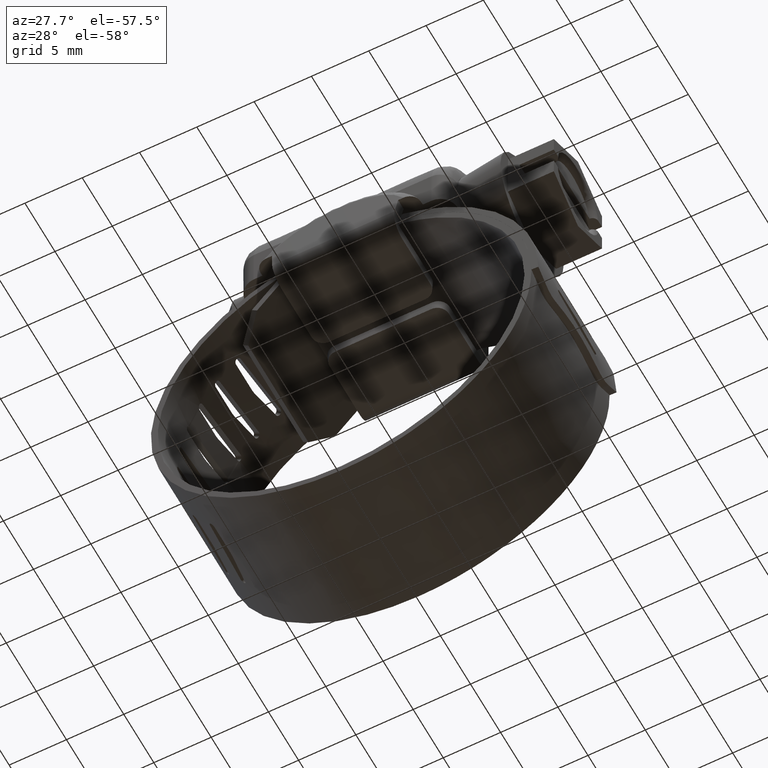
[diagram: clean part render]
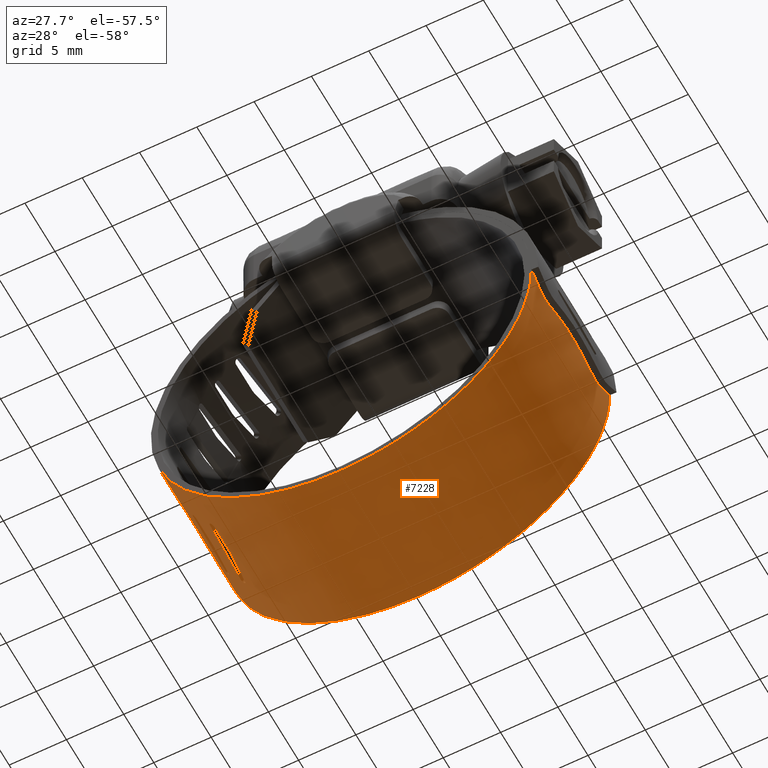
[diagram: same view with one face highlighted and labeled with its STEP entity id]
A machine part, auxiliary view. The second image highlights one B-rep face of the part: STEP entity #7228.
In plain terms, the highlighted face is a freeform B-spline surface patch.
Its self-contained STEP definition (entity closure, byte-faithful):
#3769=CARTESIAN_POINT('',(-12.894143719093140,-0.263618000000077,-14.230714618361020));
#3770=VERTEX_POINT('',#3769);
#3776=CARTESIAN_POINT('',(-12.894143719093259,-2.957435000000000,-14.230714618361120));
#3777=VERTEX_POINT('',#3776);
#3778=CARTESIAN_POINT('',(-12.894143719093140,-0.263618000000077,-14.230714618361020));
#3779=CARTESIAN_POINT('',(-12.894143719093259,-2.957435000000000,-14.230714618361120));
#3780=QUASI_UNIFORM_CURVE('',1,(#3778,#3779),.UNSPECIFIED.,.F.,.U.);
#3781=EDGE_CURVE('',#3770,#3777,#3780,.T.);
#3814=CARTESIAN_POINT('',(-12.914386328496001,0.045397000000008,-14.205699217060619));
#3815=VERTEX_POINT('',#3814);
#3821=CARTESIAN_POINT('',(-12.914386328496001,0.045397000000008,-14.205699217060619));
#3822=CARTESIAN_POINT('',(-12.900924602978749,-0.056119821465801,-14.222344851938219));
#3823=CARTESIAN_POINT('',(-12.894126167796840,-0.159868025966573,-14.230746221845861));
#3824=CARTESIAN_POINT('',(-12.894143719093140,-0.263618000000077,-14.230714618361020));
#3825=B_SPLINE_CURVE_WITH_KNOTS('',3,(#3821,#3822,#3823,#3824),.UNSPECIFIED.,.F.,.U.,(4,4),(8.580167E-010,0.311248942196160),.UNSPECIFIED.);
#3826=EDGE_CURVE('',#3815,#3770,#3825,.T.);
#3846=CARTESIAN_POINT('',(-13.263540604288460,2.742565000000000,-13.757908166197041));
#3847=VERTEX_POINT('',#3846);
#3853=CARTESIAN_POINT('',(-13.263540604288460,2.742565000000000,-13.757908166197041));
#3854=CARTESIAN_POINT('',(-12.914386328496001,0.045397000000008,-14.205699217060619));
#3855=QUASI_UNIFORM_CURVE('',1,(#3853,#3854),.UNSPECIFIED.,.F.,.U.);
#3856=EDGE_CURVE('',#3847,#3815,#3855,.T.);
#3887=CARTESIAN_POINT('',(-13.612066440866160,2.680099000000000,-13.277139258501981));
#3888=VERTEX_POINT('',#3887);
#3894=CARTESIAN_POINT('',(-13.460270404802859,3.040911973451617,-13.490994628385049));
#3895=VERTEX_POINT('',#3894);
#3896=CARTESIAN_POINT('',(-13.612066440866160,2.680099000000000,-13.277139258501981));
#3897=CARTESIAN_POINT('',(-13.617834967923040,2.723641083533918,-13.269831541085839));
#3898=CARTESIAN_POINT('',(-13.617678945014720,2.806838344107670,-13.271236421169400));
#3899=CARTESIAN_POINT('',(-13.588508166369859,2.921179515963233,-13.312977100277280));
#3900=CARTESIAN_POINT('',(-13.535407600275180,3.007748406027306,-13.387219674134370));
#3901=CARTESIAN_POINT('',(-13.486292652112700,3.036316746184025,-13.455152858380121));
#3902=CARTESIAN_POINT('',(-13.460270404802859,3.040911973451617,-13.490994628385049));
#3903=B_SPLINE_CURVE_WITH_KNOTS('',3,(#3896,#3897,#3898,#3899,#3900,#3901,#3902),.UNSPECIFIED.,.F.,.U.,(4,1,1,1,4),(0.000000130390622,0.133560000297306,0.243567322898834,0.369253119758135,0.502812989663899),.UNSPECIFIED.);
#3904=EDGE_CURVE('',#3888,#3895,#3903,.T.);
#3906=CARTESIAN_POINT('',(-13.460270404802859,3.040911973451617,-13.490994628385049));
#3907=CARTESIAN_POINT('',(-13.440418229968900,3.044494089001583,-13.518420486991580));
#3908=CARTESIAN_POINT('',(-13.406151362465939,3.040642663205307,-13.565613937265750));
#3909=CARTESIAN_POINT('',(-13.358019240954320,3.010530533849543,-13.631542760299020));
#3910=CARTESIAN_POINT('',(-13.309344775897131,2.952594711151608,-13.697813568896450));
#3911=CARTESIAN_POINT('',(-13.272545644736910,2.857798718125324,-13.747172168013440));
#3912=CARTESIAN_POINT('',(-13.263780162348850,2.776604395943760,-13.758074345420161));
#3913=CARTESIAN_POINT('',(-13.263540604288460,2.742565000000000,-13.757908166197041));
#3914=B_SPLINE_CURVE_WITH_KNOTS('',3,(#3906,#3907,#3908,#3909,#3910,#3911,#3912,#3913),.UNSPECIFIED.,.F.,.U.,(4,1,1,1,1,4),(0.000000126288215,0.102132702025739,0.172848505383076,0.259245617629881,0.400680066756197,0.502812646746120),.UNSPECIFIED.);
#3915=EDGE_CURVE('',#3895,#3847,#3914,.T.);
#3951=CARTESIAN_POINT('',(-13.263540604288920,-2.957435000000000,-13.757908166197261));
#3952=VERTEX_POINT('',#3951);
#3958=CARTESIAN_POINT('',(-13.263540604288920,-2.957435000000000,-13.757908166197261));
#3959=CARTESIAN_POINT('',(-13.612066440866160,2.680099000000000,-13.277139258501981));
#3960=QUASI_UNIFORM_CURVE('',1,(#3958,#3959),.UNSPECIFIED.,.F.,.U.);
#3961=EDGE_CURVE('',#3952,#3888,#3960,.T.);
#3991=CARTESIAN_POINT('',(-13.080977849554330,-3.257434998474523,-13.995981335509910));
#3992=VERTEX_POINT('',#3991);
#3993=CARTESIAN_POINT('',(-12.894143719093259,-2.957435000000000,-14.230714618361120));
#3994=CARTESIAN_POINT('',(-12.894378684389251,-2.991793079353261,-14.230918195762470));
#3995=CARTESIAN_POINT('',(-12.902770929682360,-3.065426319254373,-14.221257424690000));
#3996=CARTESIAN_POINT('',(-12.936668792455430,-3.155544661400515,-14.179192925701621));
#3997=CARTESIAN_POINT('',(-12.996281560673470,-3.234279689994055,-14.104047760582070));
#3998=CARTESIAN_POINT('',(-13.047711188675590,-3.257572366843802,-14.038562736120820));
#3999=CARTESIAN_POINT('',(-13.080977849554330,-3.257434998474523,-13.995981335509910));
#4000=B_SPLINE_CURVE_WITH_KNOTS('',3,(#3993,#3994,#3995,#3996,#3997,#3998,#3999),.UNSPECIFIED.,.F.,.U.,(4,1,1,1,4),(0.000000065388754,0.103095567601878,0.220920518369806,0.309286038550272,0.471294312368839),.UNSPECIFIED.);
#4001=EDGE_CURVE('',#3777,#3992,#4000,.T.);
#4003=CARTESIAN_POINT('',(-13.080977849554330,-3.257434998474523,-13.995981335509910));
#4004=CARTESIAN_POINT('',(-13.102132910206009,-3.257453165235272,-13.968904359339721));
#4005=CARTESIAN_POINT('',(-13.147372593257650,-3.244655738239640,-13.910812360771610));
#4006=CARTESIAN_POINT('',(-13.207740252828479,-3.185528914416980,-13.832677397041261));
#4007=CARTESIAN_POINT('',(-13.252893341044940,-3.085002381658640,-13.773408517944411));
#4008=CARTESIAN_POINT('',(-13.263894581024630,-3.001625709611065,-13.758103742505019));
#4009=CARTESIAN_POINT('',(-13.263540604288920,-2.957435000000000,-13.757908166197261));
#4010=B_SPLINE_CURVE_WITH_KNOTS('',3,(#4003,#4004,#4005,#4006,#4007,#4008,#4009),.UNSPECIFIED.,.F.,.U.,(4,1,1,1,4),(0.000000053363571,0.103095823896610,0.220921091113597,0.338743559600488,0.471295521447190),.UNSPECIFIED.);
#4011=EDGE_CURVE('',#3992,#3952,#4010,.T.);
#4046=CARTESIAN_POINT('',(-14.442833912010400,-0.263618000000077,-11.959186945810460));
#4047=VERTEX_POINT('',#4046);
#4053=CARTESIAN_POINT('',(-14.442833912010620,-2.957435000000000,-11.959186945810540));
#4054=VERTEX_POINT('',#4053);
#4055=CARTESIAN_POINT('',(-14.442833912010400,-0.263618000000077,-11.959186945810460));
#4056=CARTESIAN_POINT('',(-14.442833912010620,-2.957435000000000,-11.959186945810540));
#4057=QUASI_UNIFORM_CURVE('',1,(#4055,#4056),.UNSPECIFIED.,.F.,.U.);
#4058=EDGE_CURVE('',#4047,#4054,#4057,.T.);
#4091=CARTESIAN_POINT('',(-14.458670174107761,0.045397000000008,-11.931173621472960));
#4092=VERTEX_POINT('',#4091);
#4098=CARTESIAN_POINT('',(-14.458670174107761,0.045397000000008,-11.931173621472960));
#4099=CARTESIAN_POINT('',(-14.448138668375311,-0.056119587545769,-11.949815847044080));
#4100=CARTESIAN_POINT('',(-14.442823527276900,-0.159868432215356,-11.959217984070120));
#4101=CARTESIAN_POINT('',(-14.442833912010400,-0.263618000000077,-11.959186945810460));
#4102=B_SPLINE_CURVE_WITH_KNOTS('',3,(#4098,#4099,#4100,#4101),.UNSPECIFIED.,.F.,.U.,(4,4),(8.580176E-010,0.311248942196159),.UNSPECIFIED.);
#4103=EDGE_CURVE('',#4092,#4047,#4102,.T.);
#4123=CARTESIAN_POINT('',(-14.729129168166160,2.742565000000000,-11.431896678213420));
#4124=VERTEX_POINT('',#4123);
#4130=CARTESIAN_POINT('',(-14.729129168166160,2.742565000000000,-11.431896678213420));
#4131=CARTESIAN_POINT('',(-14.458670174107761,0.045397000000008,-11.931173621472960));
#4132=QUASI_UNIFORM_CURVE('',1,(#4130,#4131),.UNSPECIFIED.,.F.,.U.);
#4133=EDGE_CURVE('',#4124,#4092,#4132,.T.);
#4164=CARTESIAN_POINT('',(-14.993525425359021,2.680099000000000,-10.900197871979220));
#4165=VERTEX_POINT('',#4164);
#4171=CARTESIAN_POINT('',(-14.879107497418900,3.040911973451611,-11.136173916438040));
#4172=VERTEX_POINT('',#4171);
#4173=CARTESIAN_POINT('',(-14.993525425359021,2.680099000000000,-10.900197871979220));
#4174=CARTESIAN_POINT('',(-14.997474589574781,2.718521881396985,-10.893011694955961));
#4175=CARTESIAN_POINT('',(-14.998286621543970,2.782574451576327,-10.892592061969930));
#4176=CARTESIAN_POINT('',(-14.985075467074889,2.883315350171408,-10.920951971168311));
#4177=CARTESIAN_POINT('',(-14.958305450704550,2.967766269907337,-10.976163186466140));
#4178=CARTESIAN_POINT('',(-14.918142515227149,3.023376973215309,-11.057656859048070));
#4179=CARTESIAN_POINT('',(-14.890718996416380,3.038175677018101,-11.112864667939119));
#4180=CARTESIAN_POINT('',(-14.879107497418900,3.040911973451611,-11.136173916438040));
#4181=B_SPLINE_CURVE_WITH_KNOTS('',3,(#4173,#4174,#4175,#4176,#4177,#4178,#4179,#4180),.UNSPECIFIED.,.F.,.U.,(4,1,1,1,1,4),(0.000000130390034,0.117846690121063,0.188562883100485,0.314250236949577,0.424255048459529,0.502812989664111),.UNSPECIFIED.);
#4182=EDGE_CURVE('',#4165,#4172,#4181,.T.);
#4184=CARTESIAN_POINT('',(-14.879107497418900,3.040911973451611,-11.136173916438040));
#4185=CARTESIAN_POINT('',(-14.854781998105571,3.046812523251602,-11.185181931299210));
#4186=CARTESIAN_POINT('',(-14.815317822467780,3.031407770178367,-11.264209295830760));
#4187=CARTESIAN_POINT('',(-14.775930646114990,2.971300006856244,-11.342222481817350));
#4188=CARTESIAN_POINT('',(-14.752294577081180,2.912014626907526,-11.388591542488539));
#4189=CARTESIAN_POINT('',(-14.734709416361520,2.839438158575347,-11.422542677582870));
#4190=CARTESIAN_POINT('',(-14.729389089345700,2.776609880048800,-11.432028741113511));
#4191=CARTESIAN_POINT('',(-14.729129168166160,2.742565000000000,-11.431896678213420));
#4192=B_SPLINE_CURVE_WITH_KNOTS('',3,(#4184,#4185,#4186,#4187,#4188,#4189,#4190,#4191),.UNSPECIFIED.,.F.,.U.,(4,1,1,1,1,4),(0.000000126288101,0.164988427513105,0.259245617629521,0.314250028117922,0.400680066755858,0.502812646745723),.UNSPECIFIED.);
#4193=EDGE_CURVE('',#4172,#4124,#4192,.T.);
#4229=CARTESIAN_POINT('',(-14.729129168166381,-2.957435000000000,-11.431896678213359));
#4230=VERTEX_POINT('',#4229);
#4236=CARTESIAN_POINT('',(-14.729129168166381,-2.957435000000000,-11.431896678213359));
#4237=CARTESIAN_POINT('',(-14.993525425359021,2.680099000000000,-10.900197871979220));
#4238=QUASI_UNIFORM_CURVE('',1,(#4236,#4237),.UNSPECIFIED.,.F.,.U.);
#4239=EDGE_CURVE('',#4230,#4165,#4238,.T.);
#4269=CARTESIAN_POINT('',(-14.588363558408959,-3.257434998474523,-11.696836362808369));
#4270=VERTEX_POINT('',#4269);
#4271=CARTESIAN_POINT('',(-14.442833912010620,-2.957435000000000,-11.959186945810540));
#4272=CARTESIAN_POINT('',(-14.443097146905620,-2.991795660510919,-11.959352882067151));
#4273=CARTESIAN_POINT('',(-14.449787222364730,-3.065419798940068,-11.948425659274580));
#4274=CARTESIAN_POINT('',(-14.478782841979591,-3.164160671831772,-11.896892419028980));
#4275=CARTESIAN_POINT('',(-14.527343347539521,-3.238653374834071,-11.808865906682630));
#4276=CARTESIAN_POINT('',(-14.567276619790031,-3.257502622564236,-11.735674953213660));
#4277=CARTESIAN_POINT('',(-14.588363558408959,-3.257434998474523,-11.696836362808369));
#4278=B_SPLINE_CURVE_WITH_KNOTS('',3,(#4271,#4272,#4273,#4274,#4275,#4276,#4277),.UNSPECIFIED.,.F.,.U.,(4,1,1,1,4),(0.000000065389019,0.103095567601869,0.220920518369518,0.338742691915013,0.471294312368073),.UNSPECIFIED.);
#4279=EDGE_CURVE('',#4054,#4270,#4278,.T.);
#4281=CARTESIAN_POINT('',(-14.588363558408959,-3.257434998474523,-11.696836362808369));
#4282=CARTESIAN_POINT('',(-14.614145269237190,-3.257590494213328,-11.649355303402171));
#4283=CARTESIAN_POINT('',(-14.658365300747770,-3.231538463507074,-11.567418738949000));
#4284=CARTESIAN_POINT('',(-14.698431549645450,-3.154236862006662,-11.492161877622509));
#4285=CARTESIAN_POINT('',(-14.723136613147840,-3.065375153596115,-11.444977864077870));
#4286=CARTESIAN_POINT('',(-14.729511978077239,-3.001627985143879,-11.432028598531801));
#4287=CARTESIAN_POINT('',(-14.729129168166381,-2.957435000000000,-11.431896678213359));
#4288=B_SPLINE_CURVE_WITH_KNOTS('',3,(#4281,#4282,#4283,#4284,#4285,#4286,#4287),.UNSPECIFIED.,.F.,.U.,(4,1,1,1,4),(0.000000053363776,0.162008752412289,0.279830053986304,0.338743559601085,0.471295521447999),.UNSPECIFIED.);
#4289=EDGE_CURVE('',#4270,#4230,#4288,.T.);
#4324=CARTESIAN_POINT('',(-15.595374546525850,-0.263618000000077,-9.463204300319580));
#4325=VERTEX_POINT('',#4324);
#4331=CARTESIAN_POINT('',(-15.595374546525800,-2.957435000000000,-9.463204300319610));
#4332=VERTEX_POINT('',#4331);
#4333=CARTESIAN_POINT('',(-15.595374546525850,-0.263618000000077,-9.463204300319580));
#4334=CARTESIAN_POINT('',(-15.595374546525800,-2.957435000000000,-9.463204300319610));
#4335=QUASI_UNIFORM_CURVE('',1,(#4333,#4334),.UNSPECIFIED.,.F.,.U.);
#4336=EDGE_CURVE('',#4325,#4332,#4335,.T.);
#4369=CARTESIAN_POINT('',(-15.606370091700700,0.045397000000008,-9.432961424729340));
#4370=VERTEX_POINT('',#4369);
#4376=CARTESIAN_POINT('',(-15.606370091700700,0.045397000000008,-9.432961424729340));
#4377=CARTESIAN_POINT('',(-15.599059874308230,-0.056119580506134,-9.453086182164064));
#4378=CARTESIAN_POINT('',(-15.595369426685840,-0.159868446539706,-9.463236627755466));
#4379=CARTESIAN_POINT('',(-15.595374546525850,-0.263618000000077,-9.463204300319580));
#4380=B_SPLINE_CURVE_WITH_KNOTS('',3,(#4376,#4377,#4378,#4379),.UNSPECIFIED.,.F.,.U.,(4,4),(8.580135E-010,0.311248942196172),.UNSPECIFIED.);
#4381=EDGE_CURVE('',#4370,#4325,#4380,.T.);
#4401=CARTESIAN_POINT('',(-15.790715439199850,2.742565000000000,-8.895893154959980));
#4402=VERTEX_POINT('',#4401);
#4408=CARTESIAN_POINT('',(-15.790715439199850,2.742565000000000,-8.895893154959980));
#4409=CARTESIAN_POINT('',(-15.606370091700700,0.045397000000008,-9.432961424729340));
#4410=QUASI_UNIFORM_CURVE('',1,(#4408,#4409),.UNSPECIFIED.,.F.,.U.);
#4411=EDGE_CURVE('',#4402,#4370,#4410,.T.);
#4442=CARTESIAN_POINT('',(-15.963730045761951,2.680099000000000,-8.327848308768560));
#4443=VERTEX_POINT('',#4442);
#4449=CARTESIAN_POINT('',(-15.889828572055260,3.040911973451615,-8.579472488799988));
#4450=VERTEX_POINT('',#4449);
#4451=CARTESIAN_POINT('',(-15.963730045761951,2.680099000000000,-8.327848308768560));
#4452=CARTESIAN_POINT('',(-15.966805266878451,2.723642224016442,-8.319060280318375));
#4453=CARTESIAN_POINT('',(-15.967115522933041,2.806837904330722,-8.320438083681760));
#4454=CARTESIAN_POINT('',(-15.954307205297260,2.911423749073954,-8.365256966169852));
#4455=CARTESIAN_POINT('',(-15.929907582076931,3.001821828129053,-8.447508719938275));
#4456=CARTESIAN_POINT('',(-15.905820132325450,3.035315688252165,-8.527106202658597));
#4457=CARTESIAN_POINT('',(-15.889828572055260,3.040911973451615,-8.579472488799988));
#4458=B_SPLINE_CURVE_WITH_KNOTS('',3,(#4451,#4452,#4453,#4454,#4455,#4456,#4457),.UNSPECIFIED.,.F.,.U.,(4,1,1,1,4),(0.000000130391521,0.133560000297894,0.243567322899120,0.337824573580522,0.502812989664073),.UNSPECIFIED.);
#4459=EDGE_CURVE('',#4443,#4450,#4458,.T.);
#4461=CARTESIAN_POINT('',(-15.889828572055260,3.040911973451615,-8.579472488799988));
#4462=CARTESIAN_POINT('',(-15.879986850437890,3.044493161970513,-8.611867709669832));
#4463=CARTESIAN_POINT('',(-15.861404194032650,3.040292341820250,-8.672712786964253));
#4464=CARTESIAN_POINT('',(-15.832410175389089,3.001130583998524,-8.766689992134097));
#4465=CARTESIAN_POINT('',(-15.811005022394159,2.936690584529278,-8.835026168968884));
#4466=CARTESIAN_POINT('',(-15.795220347469551,2.844654476261602,-8.884111386876194));
#4467=CARTESIAN_POINT('',(-15.791030747792551,2.781852692532358,-8.896012592977082));
#4468=CARTESIAN_POINT('',(-15.790715439199850,2.742565000000000,-8.895893154959980));
#4469=B_SPLINE_CURVE_WITH_KNOTS('',3,(#4461,#4462,#4463,#4464,#4465,#4466,#4467,#4468),.UNSPECIFIED.,.F.,.U.,(4,1,1,1,1,4),(0.000000126288734,0.102132702025955,0.188562760977955,0.314250028118164,0.384966164945657,0.502812646745787),.UNSPECIFIED.);
#4470=EDGE_CURVE('',#4450,#4402,#4469,.T.);
#4507=CARTESIAN_POINT('',(-15.790715439199950,-2.957435000000000,-8.895893154959920));
#4508=VERTEX_POINT('',#4507);
#4514=CARTESIAN_POINT('',(-15.790715439199950,-2.957435000000000,-8.895893154959920));
#4515=CARTESIAN_POINT('',(-15.963730045761951,2.680099000000000,-8.327848308768560));
#4516=QUASI_UNIFORM_CURVE('',1,(#4514,#4515),.UNSPECIFIED.,.F.,.U.);
#4517=EDGE_CURVE('',#4508,#4443,#4516,.T.);
#4547=CARTESIAN_POINT('',(-15.695608005745269,-3.257434998474523,-9.180432378028888));
#4548=VERTEX_POINT('',#4547);
#4549=CARTESIAN_POINT('',(-15.595374546525800,-2.957435000000000,-9.463204300319610));
#4550=CARTESIAN_POINT('',(-15.595661599812630,-2.991794568940484,-9.463324364856270));
#4551=CARTESIAN_POINT('',(-15.600456363163250,-3.065422237226060,-9.451443063985826));
#4552=CARTESIAN_POINT('',(-15.620549075396410,-3.164156906500629,-9.395830195276480));
#4553=CARTESIAN_POINT('',(-15.653914425773980,-3.238661331514942,-9.300998221000031));
#4554=CARTESIAN_POINT('',(-15.681220647927750,-3.257496303310798,-9.222218000835724));
#4555=CARTESIAN_POINT('',(-15.695608005745269,-3.257434998474523,-9.180432378028888));
#4556=B_SPLINE_CURVE_WITH_KNOTS('',3,(#4549,#4550,#4551,#4552,#4553,#4554,#4555),.UNSPECIFIED.,.F.,.U.,(4,1,1,1,4),(0.000000065388647,0.103095567601741,0.220920518369651,0.338742691915407,0.471294312368704),.UNSPECIFIED.);
#4557=EDGE_CURVE('',#4332,#4548,#4556,.T.);
#4559=CARTESIAN_POINT('',(-15.695608005745269,-3.257434998474523,-9.180432378028888));
#4560=CARTESIAN_POINT('',(-15.706795351651939,-3.257453373221041,-9.147942476447158));
#4561=CARTESIAN_POINT('',(-15.730656684522090,-3.244655261863517,-9.078288893472246));
#4562=CARTESIAN_POINT('',(-15.762297953317839,-3.185529186384549,-8.984754798213277));
#4563=CARTESIAN_POINT('',(-15.785694503726550,-3.085002260295157,-8.914015929167597));
#4564=CARTESIAN_POINT('',(-15.791113831447509,-3.001626391935265,-8.895962772236221));
#4565=CARTESIAN_POINT('',(-15.790715439199950,-2.957435000000000,-8.895893154959920));
#4566=B_SPLINE_CURVE_WITH_KNOTS('',3,(#4559,#4560,#4561,#4562,#4563,#4564,#4565),.UNSPECIFIED.,.F.,.U.,(4,1,1,1,4),(0.000000053363550,0.103095823896681,0.220921091113716,0.338743559600647,0.471295521447368),.UNSPECIFIED.);
#4567=EDGE_CURVE('',#4548,#4508,#4566,.T.);
#4602=CARTESIAN_POINT('',(-16.320152819627001,-0.263618000000077,-6.811228483001179));
#4603=VERTEX_POINT('',#4602);
#4609=CARTESIAN_POINT('',(-16.320152819626951,-2.957435000000000,-6.811228483001170));
#4610=VERTEX_POINT('',#4609);
#4611=CARTESIAN_POINT('',(-16.320152819627001,-0.263618000000077,-6.811228483001179));
#4612=CARTESIAN_POINT('',(-16.320152819626951,-2.957435000000000,-6.811228483001170));
#4613=QUASI_UNIFORM_CURVE('',1,(#4611,#4612),.UNSPECIFIED.,.F.,.U.);
#4614=EDGE_CURVE('',#4603,#4610,#4613,.T.);
#4647=CARTESIAN_POINT('',(-16.326006053303349,0.045397000000008,-6.779585581851210));
#4648=VERTEX_POINT('',#4647);
#4654=CARTESIAN_POINT('',(-16.326006053303349,0.045397000000008,-6.779585581851210));
#4655=CARTESIAN_POINT('',(-16.322118188953620,-0.056119733008661,-6.800637865349237));
#4656=CARTESIAN_POINT('',(-16.320152569204101,-0.159868086759395,-6.811264121192749));
#4657=CARTESIAN_POINT('',(-16.320152819627001,-0.263618000000077,-6.811228483001179));
#4658=B_SPLINE_CURVE_WITH_KNOTS('',3,(#4654,#4655,#4656,#4657),.UNSPECIFIED.,.F.,.U.,(4,4),(8.580057E-010,0.311248942196166),.UNSPECIFIED.);
#4659=EDGE_CURVE('',#4648,#4603,#4658,.T.);
#4679=CARTESIAN_POINT('',(-16.419181383143350,2.742565000000000,-6.219457122078910));
#4680=VERTEX_POINT('',#4679);
#4686=CARTESIAN_POINT('',(-16.419181383143350,2.742565000000000,-6.219457122078910));
#4687=CARTESIAN_POINT('',(-16.326006053303349,0.045397000000008,-6.779585581851210));
#4688=QUASI_UNIFORM_CURVE('',1,(#4686,#4687),.UNSPECIFIED.,.F.,.U.);
#4689=EDGE_CURVE('',#4680,#4648,#4688,.T.);
#4720=CARTESIAN_POINT('',(-16.496068756565499,2.680099000000000,-5.630647022660829));
#4721=VERTEX_POINT('',#4720);
#4727=CARTESIAN_POINT('',(-16.464710765607069,3.040911973451615,-5.891017589729428));
#4728=VERTEX_POINT('',#4727);
#4729=CARTESIAN_POINT('',(-16.496068756565499,2.680099000000000,-5.630647022660829));
#4730=CARTESIAN_POINT('',(-16.497274604635020,2.713398363575630,-5.623664016402350));
#4731=CARTESIAN_POINT('',(-16.498272149882879,2.787731640835431,-5.620891715614834));
#4732=CARTESIAN_POINT('',(-16.494343826531541,2.896434612139275,-5.657587138541201));
#4733=CARTESIAN_POINT('',(-16.483429901621250,2.998798767003947,-5.746716524554620));
#4734=CARTESIAN_POINT('',(-16.471838134909280,3.035299831053888,-5.836743810140919));
#4735=CARTESIAN_POINT('',(-16.464710765607069,3.040911973451615,-5.891017589729428));
#4736=B_SPLINE_CURVE_WITH_KNOTS('',3,(#4729,#4730,#4731,#4732,#4733,#4734,#4735),.UNSPECIFIED.,.F.,.U.,(4,1,1,1,4),(0.000000130390040,0.102132777183301,0.219988442931798,0.337824573580379,0.502812989664157),.UNSPECIFIED.);
#4737=EDGE_CURVE('',#4721,#4728,#4736,.T.);
#4739=CARTESIAN_POINT('',(-16.464710765607069,3.040911973451615,-5.891017589729428));
#4740=CARTESIAN_POINT('',(-16.458337904146550,3.046214460231006,-5.940097984635862));
#4741=CARTESIAN_POINT('',(-16.445746969324752,3.032123889558888,-6.035444362564971));
#4742=CARTESIAN_POINT('',(-16.431767048690588,2.959355389921440,-6.137536735278308));
#4743=CARTESIAN_POINT('',(-16.422345917115830,2.860341386746486,-6.203037044959876));
#4744=CARTESIAN_POINT('',(-16.419554059919459,2.787093946886274,-6.219548000989732));
#4745=CARTESIAN_POINT('',(-16.419181383143350,2.742565000000000,-6.219457122078910));
#4746=B_SPLINE_CURVE_WITH_KNOTS('',3,(#4739,#4740,#4741,#4742,#4743,#4744,#4745),.UNSPECIFIED.,.F.,.U.,(4,1,1,1,4),(0.000000126288849,0.149273805726698,0.282824495143334,0.369252865201536,0.502812646745667),.UNSPECIFIED.);
#4747=EDGE_CURVE('',#4728,#4680,#4746,.T.);
#4784=CARTESIAN_POINT('',(-16.419181383143350,-2.957435000000000,-6.219457122078830));
#4785=VERTEX_POINT('',#4784);
#4791=CARTESIAN_POINT('',(-16.419181383143350,-2.957435000000000,-6.219457122078830));
#4792=CARTESIAN_POINT('',(-16.496068756565499,2.680099000000000,-5.630647022660829));
#4793=QUASI_UNIFORM_CURVE('',1,(#4791,#4792),.UNSPECIFIED.,.F.,.U.);
#4794=EDGE_CURVE('',#4785,#4721,#4793,.T.);
#4824=CARTESIAN_POINT('',(-16.372340808468589,-3.257434998474523,-6.515791315055966));
#4825=VERTEX_POINT('',#4824);
#4826=CARTESIAN_POINT('',(-16.320152819626951,-2.957435000000000,-6.811228483001170));
#4827=CARTESIAN_POINT('',(-16.320455731828041,-2.991795675772392,-6.811299707689787));
#4828=CARTESIAN_POINT('',(-16.323223771255801,-3.065420077037393,-6.798789727139835));
#4829=CARTESIAN_POINT('',(-16.333862154229610,-3.164158194271229,-6.740623484006379));
#4830=CARTESIAN_POINT('',(-16.351118126907402,-3.238660619108380,-6.641585102516796));
#4831=CARTESIAN_POINT('',(-16.365047393060141,-3.257496477934539,-6.559378413297409));
#4832=CARTESIAN_POINT('',(-16.372340808468589,-3.257434998474523,-6.515791315055966));
#4833=B_SPLINE_CURVE_WITH_KNOTS('',3,(#4826,#4827,#4828,#4829,#4830,#4831,#4832),.UNSPECIFIED.,.F.,.U.,(4,1,1,1,4),(0.000000065388590,0.103095567601662,0.220920518369528,0.338742691915218,0.471294312368444),.UNSPECIFIED.);
#4834=EDGE_CURVE('',#4610,#4825,#4833,.T.);
#4836=CARTESIAN_POINT('',(-16.372340808468589,-3.257434998474523,-6.515791315055966));
#4837=CARTESIAN_POINT('',(-16.378012487241190,-3.257453428747377,-6.481899708394621));
#4838=CARTESIAN_POINT('',(-16.390050128587610,-3.244655234467980,-6.409264858489300));
#4839=CARTESIAN_POINT('',(-16.405820506783169,-3.185529706105447,-6.311787483477957));
#4840=CARTESIAN_POINT('',(-16.417219229541249,-3.085000982781977,-6.238167134140366));
#4841=CARTESIAN_POINT('',(-16.419586787915399,-3.001626990958549,-6.219454171187498));
#4842=CARTESIAN_POINT('',(-16.419181383143350,-2.957435000000000,-6.219457122078830));
#4843=B_SPLINE_CURVE_WITH_KNOTS('',3,(#4836,#4837,#4838,#4839,#4840,#4841,#4842),.UNSPECIFIED.,.F.,.U.,(4,1,1,1,4),(0.000000053363590,0.103095823896664,0.220921091113753,0.338743559600782,0.471295521447598),.UNSPECIFIED.);
#4844=EDGE_CURVE('',#4825,#4785,#4843,.T.);
#4880=CARTESIAN_POINT('',(-9.291132599940880,-0.263618000000077,9.980266027171590));
#4881=VERTEX_POINT('',#4880);
#4887=CARTESIAN_POINT('',(-9.291132599940971,-2.957435000000000,9.980266027171719));
#4888=VERTEX_POINT('',#4887);
#4889=CARTESIAN_POINT('',(-9.291132599940880,-0.263618000000077,9.980266027171590));
#4890=CARTESIAN_POINT('',(-9.291132599940971,-2.957435000000000,9.980266027171719));
#4891=QUASI_UNIFORM_CURVE('',1,(#4889,#4890),.UNSPECIFIED.,.F.,.U.);
#4892=EDGE_CURVE('',#4881,#4888,#4891,.T.);
#4925=CARTESIAN_POINT('',(-9.264448130137140,0.045397000000008,9.998251371453911));
#4926=VERTEX_POINT('',#4925);
#4932=CARTESIAN_POINT('',(-9.264448130137140,0.045397000000008,9.998251371453911));
#4933=CARTESIAN_POINT('',(-9.282206594619614,-0.056119580506127,9.986289679292828));
#4934=CARTESIAN_POINT('',(-9.291162728512392,-0.159868446539699,9.980253238698159));
#4935=CARTESIAN_POINT('',(-9.291132599940880,-0.263618000000077,9.980266027171590));
#4936=B_SPLINE_CURVE_WITH_KNOTS('',3,(#4932,#4933,#4934,#4935),.UNSPECIFIED.,.F.,.U.,(4,4),(8.580025E-010,0.311248942196175),.UNSPECIFIED.);
#4937=EDGE_CURVE('',#4926,#4881,#4936,.T.);
#4957=CARTESIAN_POINT('',(-8.787930259173569,2.742565000000000,10.307049448180500));
#4958=VERTEX_POINT('',#4957);
#4964=CARTESIAN_POINT('',(-8.787930259173569,2.742565000000000,10.307049448180500));
#4965=CARTESIAN_POINT('',(-9.264448130137140,0.045397000000008,9.998251371453911));
#4966=QUASI_UNIFORM_CURVE('',1,(#4964,#4965),.UNSPECIFIED.,.F.,.U.);
#4967=EDGE_CURVE('',#4958,#4926,#4966,.T.);
#4998=CARTESIAN_POINT('',(-8.278614794166780,2.680099000000000,10.612347267487060));
#4999=VERTEX_POINT('',#4998);
#5005=CARTESIAN_POINT('',(-8.504886276072746,3.040911973451614,10.479767584771841));
#5006=VERTEX_POINT('',#5005);
#5007=CARTESIAN_POINT('',(-8.278614794166780,2.680099000000000,10.612347267487060));
#5008=CARTESIAN_POINT('',(-8.271765270791509,2.718519584068758,10.616845256792979));
#5009=CARTESIAN_POINT('',(-8.271266820147456,2.801277796120112,10.617957955140580));
#5010=CARTESIAN_POINT('',(-8.306790093182134,2.900174246994034,10.597558715742959));
#5011=CARTESIAN_POINT('',(-8.357797470019433,2.967542757713859,10.567534675439321));
#5012=CARTESIAN_POINT('',(-8.418897630922771,3.017771452106381,10.531270535617971));
#5013=CARTESIAN_POINT('',(-8.471383224204297,3.036842927875819,10.499882846327500));
#5014=CARTESIAN_POINT('',(-8.504886276072746,3.040911973451614,10.479767584771841));
#5015=B_SPLINE_CURVE_WITH_KNOTS('',3,(#5007,#5008,#5009,#5010,#5011,#5012,#5013,#5014),.UNSPECIFIED.,.F.,.U.,(4,1,1,1,1,4),(0.000000130389662,0.117846690120805,0.243567322898650,0.314250236949674,0.384966429934187,0.502812989664407),.UNSPECIFIED.);
#5016=EDGE_CURVE('',#4999,#5006,#5015,.T.);
#5018=CARTESIAN_POINT('',(-8.504886276072746,3.040911973451614,10.479767584771841));
#5019=CARTESIAN_POINT('',(-8.547360771924453,3.046222995625087,10.454349014578259));
#5020=CARTESIAN_POINT('',(-8.611436329166725,3.035220529316903,10.415813576381190));
#5021=CARTESIAN_POINT('',(-8.690148200817010,2.983678788498573,10.368096074458389));
#5022=CARTESIAN_POINT('',(-8.741349778776753,2.923719995005491,10.336792221436610));
#5023=CARTESIAN_POINT('',(-8.779041626693802,2.839437792866043,10.313347169718430));
#5024=CARTESIAN_POINT('',(-8.788084144351545,2.776610241566824,10.307297109028051));
#5025=CARTESIAN_POINT('',(-8.787930259173569,2.742565000000000,10.307049448180500));
#5026=B_SPLINE_CURVE_WITH_KNOTS('',3,(#5018,#5019,#5020,#5021,#5022,#5023,#5024,#5025),.UNSPECIFIED.,.F.,.U.,(4,1,1,1,1,4),(0.000000126288376,0.149273805726381,0.219988305392369,0.314250028117735,0.400680066755525,0.502812646745181),.UNSPECIFIED.);
#5027=EDGE_CURVE('',#5006,#4958,#5026,.T.);
#5064=CARTESIAN_POINT('',(-8.787930259173789,-2.957435000000000,10.307049448180839));
#5065=VERTEX_POINT('',#5064);
#5071=CARTESIAN_POINT('',(-8.787930259173789,-2.957435000000000,10.307049448180839));
#5072=CARTESIAN_POINT('',(-8.278614794166780,2.680099000000000,10.612347267487060));
#5073=QUASI_UNIFORM_CURVE('',1,(#5071,#5072),.UNSPECIFIED.,.F.,.U.);
#5074=EDGE_CURVE('',#5065,#4999,#5073,.T.);
#5104=CARTESIAN_POINT('',(-9.041008880688654,-3.257434998474522,10.145930843744731));
#5105=VERTEX_POINT('',#5104);
#5106=CARTESIAN_POINT('',(-9.291132599940971,-2.957435000000000,9.980266027171719));
#5107=CARTESIAN_POINT('',(-9.291315735544696,-2.991793255060463,9.980517316224480));
#5108=CARTESIAN_POINT('',(-9.280953982691248,-3.065422714383130,9.988039692850400));
#5109=CARTESIAN_POINT('',(-9.231848418740578,-3.164159111110579,10.020993128027190));
#5110=CARTESIAN_POINT('',(-9.147906579281827,-3.238654151675178,10.076308298395510));
#5111=CARTESIAN_POINT('',(-9.078073001039847,-3.257502348857146,10.121861848300410));
#5112=CARTESIAN_POINT('',(-9.041008880688654,-3.257434998474522,10.145930843744731));
#5113=B_SPLINE_CURVE_WITH_KNOTS('',3,(#5106,#5107,#5108,#5109,#5110,#5111,#5112),.UNSPECIFIED.,.F.,.U.,(4,1,1,1,4),(0.000000065388595,0.103095567601652,0.220920518369503,0.338742691915189,0.471294312368410),.UNSPECIFIED.);
#5114=EDGE_CURVE('',#4888,#5105,#5113,.T.);
#5116=CARTESIAN_POINT('',(-9.041008880688654,-3.257434998474522,10.145930843744731));
#5117=CARTESIAN_POINT('',(-9.012192571582551,-3.257450003560410,10.164644535392959));
#5118=CARTESIAN_POINT('',(-8.950375861047998,-3.244659961436528,10.204650960780160));
#5119=CARTESIAN_POINT('',(-8.867278890376566,-3.185526617442659,10.257977588151540));
#5120=CARTESIAN_POINT('',(-8.804299373999774,-3.085003460860446,10.297793802454271));
#5121=CARTESIAN_POINT('',(-8.788094318110456,-3.001625445677524,10.307419070054090));
#5122=CARTESIAN_POINT('',(-8.787930259173789,-2.957435000000000,10.307049448180839));
#5123=B_SPLINE_CURVE_WITH_KNOTS('',3,(#5116,#5117,#5118,#5119,#5120,#5121,#5122),.UNSPECIFIED.,.F.,.U.,(4,1,1,1,4),(0.000000053363528,0.103095823896644,0.220921091113757,0.338743559600788,0.471295521447627),.UNSPECIFIED.);
#5124=EDGE_CURVE('',#5105,#5065,#5123,.T.);
#5160=CARTESIAN_POINT('',(-11.434149078662079,-0.263618000000077,8.258127922160810));
#5161=VERTEX_POINT('',#5160);
#5167=CARTESIAN_POINT('',(-11.434149078662140,-2.957435000000000,8.258127922160961));
#5168=VERTEX_POINT('',#5167);
#5169=CARTESIAN_POINT('',(-11.434149078662079,-0.263618000000077,8.258127922160810));
#5170=CARTESIAN_POINT('',(-11.434149078662140,-2.957435000000000,8.258127922160961));
#5171=QUASI_UNIFORM_CURVE('',1,(#5169,#5170),.UNSPECIFIED.,.F.,.U.);
#5172=EDGE_CURVE('',#5161,#5168,#5171,.T.);
#5205=CARTESIAN_POINT('',(-11.410799008324480,0.045397000000008,8.280270816119922));
#5206=VERTEX_POINT('',#5205);
#5212=CARTESIAN_POINT('',(-11.410799008324480,0.045397000000008,8.280270816119922));
#5213=CARTESIAN_POINT('',(-11.426337139951640,-0.056119872660385,8.265544582884873));
#5214=CARTESIAN_POINT('',(-11.434179210138041,-0.159868012285761,8.258107943047182));
#5215=CARTESIAN_POINT('',(-11.434149078662079,-0.263618000000077,8.258127922160810));
#5216=B_SPLINE_CURVE_WITH_KNOTS('',3,(#5212,#5213,#5214,#5215),.UNSPECIFIED.,.F.,.U.,(4,4),(8.580073E-010,0.311248942196170),.UNSPECIFIED.);
#5217=EDGE_CURVE('',#5206,#5161,#5216,.T.);
#5237=CARTESIAN_POINT('',(-10.991782676575960,2.742565000000000,8.663482046729950));
#5238=VERTEX_POINT('',#5237);
#5244=CARTESIAN_POINT('',(-10.991782676575960,2.742565000000000,8.663482046729950));
#5245=CARTESIAN_POINT('',(-11.410799008324480,0.045397000000008,8.280270816119922));
#5246=QUASI_UNIFORM_CURVE('',1,(#5244,#5245),.UNSPECIFIED.,.F.,.U.);
#5247=EDGE_CURVE('',#5238,#5206,#5246,.T.);
#5278=CARTESIAN_POINT('',(-10.539840840950600,2.680099000000000,9.048654188220061));
#5279=VERTEX_POINT('',#5278);
#5285=CARTESIAN_POINT('',(-10.741127186375000,3.040911973451618,8.880547189738520));
#5286=VERTEX_POINT('',#5285);
#5287=CARTESIAN_POINT('',(-10.539840840950600,2.680099000000000,9.048654188220061));
#5288=CARTESIAN_POINT('',(-10.533004188460490,2.723646118277471,9.054981813195711));
#5289=CARTESIAN_POINT('',(-10.534400806004220,2.806831450694935,9.054708808694654));
#5290=CARTESIAN_POINT('',(-10.567877532860701,2.904127348589123,9.027163160696306));
#5291=CARTESIAN_POINT('',(-10.613199244108960,2.971515070995970,8.989158727410660));
#5292=CARTESIAN_POINT('',(-10.668640775454120,3.020023611253394,8.942292671032080));
#5293=CARTESIAN_POINT('',(-10.715370992207999,3.037371282663541,8.902529848783676));
#5294=CARTESIAN_POINT('',(-10.741127186375000,3.040911973451618,8.880547189738520));
#5295=B_SPLINE_CURVE_WITH_KNOTS('',3,(#5287,#5288,#5289,#5290,#5291,#5292,#5293,#5294),.UNSPECIFIED.,.F.,.U.,(4,1,1,1,1,4),(0.000000130389869,0.133560000296936,0.243567322898748,0.314250236949717,0.400680342872254,0.502812989664399),.UNSPECIFIED.);
#5296=EDGE_CURVE('',#5279,#5286,#5295,.T.);
#5298=CARTESIAN_POINT('',(-10.741127186375000,3.040911973451618,8.880547189738520));
#5299=CARTESIAN_POINT('',(-10.770880282980240,3.045064100969565,8.855226554453918));
#5300=CARTESIAN_POINT('',(-10.819385731974791,3.039137276086289,8.813804324692530));
#5301=CARTESIAN_POINT('',(-10.880037975487570,3.004798906662602,8.761706069327961));
#5302=CARTESIAN_POINT('',(-10.928021720448481,2.957492480623184,8.720262987922649));
#5303=CARTESIAN_POINT('',(-10.976732855125400,2.873405931825417,8.677785841996137));
#5304=CARTESIAN_POINT('',(-10.992117325659780,2.792341096621917,8.663756868312163));
#5305=CARTESIAN_POINT('',(-10.991782676575960,2.742565000000000,8.663482046729950));
#5306=B_SPLINE_CURVE_WITH_KNOTS('',3,(#5298,#5299,#5300,#5301,#5302,#5303,#5304,#5305),.UNSPECIFIED.,.F.,.U.,(4,1,1,1,1,4),(0.000000126288593,0.117846605098278,0.188562760977647,0.259245617629511,0.353538961456154,0.502812646745253),.UNSPECIFIED.);
#5307=EDGE_CURVE('',#5286,#5238,#5306,.T.);
#5344=CARTESIAN_POINT('',(-10.991782676576079,-2.957435000000000,8.663482046730399));
#5345=VERTEX_POINT('',#5344);
#5351=CARTESIAN_POINT('',(-10.991782676576079,-2.957435000000000,8.663482046730399));
#5352=CARTESIAN_POINT('',(-10.539840840950600,2.680099000000000,9.048654188220061));
#5353=QUASI_UNIFORM_CURVE('',1,(#5351,#5352),.UNSPECIFIED.,.F.,.U.);
#5354=EDGE_CURVE('',#5345,#5279,#5353,.T.);
#5384=CARTESIAN_POINT('',(-11.214798237111360,-3.257434998474523,8.462803066459808));
#5385=VERTEX_POINT('',#5384);
#5386=CARTESIAN_POINT('',(-11.434149078662140,-2.957435000000000,8.258127922160961));
#5387=CARTESIAN_POINT('',(-11.434373565190290,-2.991794775754664,8.258343369408991));
#5388=CARTESIAN_POINT('',(-11.425389716375189,-3.065421783242853,8.267478003819971));
#5389=CARTESIAN_POINT('',(-11.382401330733890,-3.164157233519425,8.308079812073761));
#5390=CARTESIAN_POINT('',(-11.308739123838061,-3.238660995532158,8.376491988679762));
#5391=CARTESIAN_POINT('',(-11.247381140575779,-3.257496431628687,8.432947089301809));
#5392=CARTESIAN_POINT('',(-11.214798237111360,-3.257434998474523,8.462803066459808));
#5393=B_SPLINE_CURVE_WITH_KNOTS('',3,(#5386,#5387,#5388,#5389,#5390,#5391,#5392),.UNSPECIFIED.,.F.,.U.,(4,1,1,1,4),(0.000000065389084,0.103095567601998,0.220920518369694,0.338742691915254,0.471294312368427),.UNSPECIFIED.);
#5394=EDGE_CURVE('',#5168,#5385,#5393,.T.);
#5396=CARTESIAN_POINT('',(-11.214798237111360,-3.257434998474523,8.462803066459808));
#5397=CARTESIAN_POINT('',(-11.189464003783890,-3.257453516185601,8.486017841227534));
#5398=CARTESIAN_POINT('',(-11.135101918316449,-3.244655222099268,8.535674644895646));
#5399=CARTESIAN_POINT('',(-11.061942760559329,-3.185529212510247,8.601987948400709));
#5400=CARTESIAN_POINT('',(-11.006400150075210,-3.085002496266559,8.651651207787072));
#5401=CARTESIAN_POINT('',(-10.992005377992079,-3.001625564910052,8.663819626710909));
#5402=CARTESIAN_POINT('',(-10.991782676576079,-2.957435000000000,8.663482046730399));
#5403=B_SPLINE_CURVE_WITH_KNOTS('',3,(#5396,#5397,#5398,#5399,#5400,#5401,#5402),.UNSPECIFIED.,.F.,.U.,(4,1,1,1,4),(0.000000053363505,0.103095823896657,0.220921091113769,0.338743559600797,0.471295521447637),.UNSPECIFIED.);
#5404=EDGE_CURVE('',#5385,#5345,#5403,.T.);
#5439=CARTESIAN_POINT('',(-13.263540604288419,-0.263618000000077,6.205908166197080));
#5440=VERTEX_POINT('',#5439);
#5446=CARTESIAN_POINT('',(-13.263540604288460,-2.957435000000000,6.205908166197150));
#5447=VERTEX_POINT('',#5446);
#5448=CARTESIAN_POINT('',(-13.263540604288419,-0.263618000000077,6.205908166197080));
#5449=CARTESIAN_POINT('',(-13.263540604288460,-2.957435000000000,6.205908166197150));
#5450=QUASI_UNIFORM_CURVE('',1,(#5448,#5449),.UNSPECIFIED.,.F.,.U.);
#5451=EDGE_CURVE('',#5440,#5447,#5450,.T.);
#5484=CARTESIAN_POINT('',(-13.244165397754241,0.045397000000008,6.231601256891169));
#5485=VERTEX_POINT('',#5484);
#5491=CARTESIAN_POINT('',(-13.244165397754241,0.045397000000008,6.231601256891169));
#5492=CARTESIAN_POINT('',(-13.257060166182161,-0.056119733008674,6.214512106038306));
#5493=CARTESIAN_POINT('',(-13.263566710336150,-0.159868086759399,6.205883904752771));
#5494=CARTESIAN_POINT('',(-13.263540604288419,-0.263618000000077,6.205908166197080));
#5495=B_SPLINE_CURVE_WITH_KNOTS('',3,(#5491,#5492,#5493,#5494),.UNSPECIFIED.,.F.,.U.,(4,4),(8.580137E-010,0.311248942196163),.UNSPECIFIED.);
#5496=EDGE_CURVE('',#5485,#5440,#5495,.T.);
#5516=CARTESIAN_POINT('',(-12.894143719093019,2.742565000000000,6.678714618361000));
#5517=VERTEX_POINT('',#5516);
#5523=CARTESIAN_POINT('',(-12.894143719093019,2.742565000000000,6.678714618361000));
#5524=CARTESIAN_POINT('',(-13.244165397754241,0.045397000000008,6.231601256891169));
#5525=QUASI_UNIFORM_CURVE('',1,(#5523,#5524),.UNSPECIFIED.,.F.,.U.);
#5526=EDGE_CURVE('',#5517,#5485,#5525,.T.);
#5557=CARTESIAN_POINT('',(-12.511971733680401,2.680099000000000,7.133196273584041));
#5558=VERTEX_POINT('',#5557);
#5564=CARTESIAN_POINT('',(-12.682751900330921,3.040911973451610,6.934172932059248));
#5565=VERTEX_POINT('',#5564);
#5566=CARTESIAN_POINT('',(-12.511971733680401,2.680099000000000,7.133196273584041));
#5567=CARTESIAN_POINT('',(-12.506959749919901,2.718519508180709,7.139679232580514));
#5568=CARTESIAN_POINT('',(-12.506850807121680,2.801277900514939,7.140893481320219));
#5569=CARTESIAN_POINT('',(-12.533797297967441,2.900174238949514,7.110040470206418));
#5570=CARTESIAN_POINT('',(-12.572250844014940,2.967542728952886,7.065045810363458));
#5571=CARTESIAN_POINT('',(-12.618215783219110,3.017771483184853,7.010865065644203));
#5572=CARTESIAN_POINT('',(-12.657623048154040,3.036842922194927,6.964099791775603));
#5573=CARTESIAN_POINT('',(-12.682751900330921,3.040911973451610,6.934172932059248));
#5574=B_SPLINE_CURVE_WITH_KNOTS('',3,(#5566,#5567,#5568,#5569,#5570,#5571,#5572,#5573),.UNSPECIFIED.,.F.,.U.,(4,1,1,1,1,4),(0.000000130390443,0.117846690121393,0.243567322899015,0.314250236949917,0.384966429934363,0.502812989664472),.UNSPECIFIED.);
#5575=EDGE_CURVE('',#5558,#5565,#5574,.T.);
#5577=CARTESIAN_POINT('',(-12.682751900330921,3.040911973451610,6.934172932059248));
#5578=CARTESIAN_POINT('',(-12.704559454700471,3.044489293509348,6.908276618102302));
#5579=CARTESIAN_POINT('',(-12.752296597521671,3.039621332473424,6.851420102537560));
#5580=CARTESIAN_POINT('',(-12.814409719352129,2.994962708544287,6.776931276289340));
#5581=CARTESIAN_POINT('',(-12.855000372580530,2.931208496739189,6.727793079334661));
#5582=CARTESIAN_POINT('',(-12.885640826801170,2.849872217502683,6.690258403661630));
#5583=CARTESIAN_POINT('',(-12.894468258652250,2.787099319186139,6.678921206780717));
#5584=CARTESIAN_POINT('',(-12.894143719093019,2.742565000000000,6.678714618361000));
#5585=B_SPLINE_CURVE_WITH_KNOTS('',3,(#5577,#5578,#5579,#5580,#5581,#5582,#5583,#5584),.UNSPECIFIED.,.F.,.U.,(4,1,1,1,1,4),(0.000000126288015,0.102132702025440,0.219988305392279,0.314250028117631,0.369252865201048,0.502812646745064),.UNSPECIFIED.);
#5586=EDGE_CURVE('',#5565,#5517,#5585,.T.);
#5622=CARTESIAN_POINT('',(-12.894143719093361,-2.957435000000000,6.678714618361450));
#5623=VERTEX_POINT('',#5622);
#5629=CARTESIAN_POINT('',(-12.894143719093361,-2.957435000000000,6.678714618361450));
#5630=CARTESIAN_POINT('',(-12.511971733680401,2.680099000000000,7.133196273584041));
#5631=QUASI_UNIFORM_CURVE('',1,(#5629,#5630),.UNSPECIFIED.,.F.,.U.);
#5632=EDGE_CURVE('',#5623,#5558,#5631,.T.);
#5662=CARTESIAN_POINT('',(-13.080979170128041,-3.257434998474523,6.443979645252632));
#5663=VERTEX_POINT('',#5662);
#5664=CARTESIAN_POINT('',(-13.263540604288460,-2.957435000000000,6.205908166197150));
#5665=CARTESIAN_POINT('',(-13.263797789332910,-2.991795516959832,6.206083339397406));
#5666=CARTESIAN_POINT('',(-13.256444369221599,-3.065420261080661,6.216575976298795));
#5667=CARTESIAN_POINT('',(-13.220747365061451,-3.164160535034726,6.263715400450558));
#5668=CARTESIAN_POINT('',(-13.159385426234110,-3.238653431059960,6.343348531889956));
#5669=CARTESIAN_POINT('',(-13.108187975581540,-3.257502528255349,6.409154953655687));
#5670=CARTESIAN_POINT('',(-13.080979170128041,-3.257434998474523,6.443979645252632));
#5671=B_SPLINE_CURVE_WITH_KNOTS('',3,(#5664,#5665,#5666,#5667,#5668,#5669,#5670),.UNSPECIFIED.,.F.,.U.,(4,1,1,1,4),(0.000000065388731,0.103095567601686,0.220920518369409,0.338742691914957,0.471294312368053),.UNSPECIFIED.);
#5672=EDGE_CURVE('',#5447,#5663,#5671,.T.);
#5674=CARTESIAN_POINT('',(-13.080979170128041,-3.257434998474523,6.443979645252632));
#5675=CARTESIAN_POINT('',(-13.047716644403589,-3.257590439491091,6.486556018383876));
#5676=CARTESIAN_POINT('',(-12.990208529347431,-3.231538571381398,6.559780651172472));
#5677=CARTESIAN_POINT('',(-12.937169888469519,-3.154236783189835,6.626532354581722));
#5678=CARTESIAN_POINT('',(-12.903750461628769,-3.065375255979821,6.668002931447002));
#5679=CARTESIAN_POINT('',(-12.894417320838169,-3.001627928507235,6.679013102536061));
#5680=CARTESIAN_POINT('',(-12.894143719093361,-2.957435000000000,6.678714618361450));
#5681=B_SPLINE_CURVE_WITH_KNOTS('',3,(#5674,#5675,#5676,#5677,#5678,#5679,#5680),.UNSPECIFIED.,.F.,.U.,(4,1,1,1,4),(0.000000053363684,0.162008752412241,0.279830053986291,0.338743559601099,0.471295521448052),.UNSPECIFIED.);
#5682=EDGE_CURVE('',#5663,#5623,#5681,.T.);
#5717=CARTESIAN_POINT('',(-14.729129168166081,-0.263618000000077,3.879896678213400));
#5718=VERTEX_POINT('',#5717);
#5724=CARTESIAN_POINT('',(-14.729129168166260,-2.957435000000000,3.879896678213535));
#5725=VERTEX_POINT('',#5724);
#5726=CARTESIAN_POINT('',(-14.729129168166081,-0.263618000000077,3.879896678213400));
#5727=CARTESIAN_POINT('',(-14.729129168166260,-2.957435000000000,3.879896678213535));
#5728=QUASI_UNIFORM_CURVE('',1,(#5726,#5727),.UNSPECIFIED.,.F.,.U.);
#5729=EDGE_CURVE('',#5718,#5725,#5728,.T.);
#5762=CARTESIAN_POINT('',(-14.714260264040799,0.045397000000008,3.908435235075531));
#5763=VERTEX_POINT('',#5762);
#5769=CARTESIAN_POINT('',(-14.714260264040799,0.045397000000008,3.908435235075531));
#5770=CARTESIAN_POINT('',(-14.724159080828960,-0.056119587545743,3.889449487435889));
#5771=CARTESIAN_POINT('',(-14.729149543109751,-0.159868432215350,3.879871064195211));
#5772=CARTESIAN_POINT('',(-14.729129168166081,-0.263618000000077,3.879896678213400));
#5773=B_SPLINE_CURVE_WITH_KNOTS('',3,(#5769,#5770,#5771,#5772),.UNSPECIFIED.,.F.,.U.,(4,4),(8.580083E-010,0.311248942196178),.UNSPECIFIED.);
#5774=EDGE_CURVE('',#5763,#5718,#5773,.T.);
#5794=CARTESIAN_POINT('',(-14.442833912010400,2.742565000000000,4.407186945810550));
#5795=VERTEX_POINT('',#5794);
#5801=CARTESIAN_POINT('',(-14.442833912010400,2.742565000000000,4.407186945810550));
#5802=CARTESIAN_POINT('',(-14.714260264040799,0.045397000000008,3.908435235075531));
#5803=QUASI_UNIFORM_CURVE('',1,(#5801,#5802),.UNSPECIFIED.,.F.,.U.);
#5804=EDGE_CURVE('',#5795,#5763,#5803,.T.);
#5835=CARTESIAN_POINT('',(-14.140914294589161,2.680099000000000,4.918512229739171));
#5836=VERTEX_POINT('',#5835);
#5842=CARTESIAN_POINT('',(-14.276503987955209,3.040911973451615,4.694031515989845));
#5843=VERTEX_POINT('',#5842);
#5844=CARTESIAN_POINT('',(-14.140914294589161,2.680099000000000,4.918512229739171));
#5845=CARTESIAN_POINT('',(-14.137039839501190,2.718521990669042,4.925735583384573));
#5846=CARTESIAN_POINT('',(-14.137132033968260,2.793255924913594,4.926819275309069));
#5847=CARTESIAN_POINT('',(-14.156517826097501,2.892952682842983,4.895522890563587));
#5848=CARTESIAN_POINT('',(-14.185799313262210,2.962987408895602,4.846913927015432));
#5849=CARTESIAN_POINT('',(-14.225513056227310,3.017767213602845,4.780319485256640));
#5850=CARTESIAN_POINT('',(-14.256658406130960,3.036844072158708,4.727696635216019));
#5851=CARTESIAN_POINT('',(-14.276503987955209,3.040911973451615,4.694031515989845));
#5852=B_SPLINE_CURVE_WITH_KNOTS('',3,(#5844,#5845,#5846,#5847,#5848,#5849,#5850,#5851),.UNSPECIFIED.,.F.,.U.,(4,1,1,1,1,4),(0.000000130390196,0.117846690121087,0.219988442931774,0.314250236949512,0.384966429933928,0.502812989664080),.UNSPECIFIED.);
#5853=EDGE_CURVE('',#5836,#5843,#5852,.T.);
#5855=CARTESIAN_POINT('',(-14.276503987955209,3.040911973451615,4.694031515989845));
#5856=CARTESIAN_POINT('',(-14.296393156907120,3.045065649877415,4.660402638964463));
#5857=CARTESIAN_POINT('',(-14.328767472301969,3.039131846296336,4.605449827607001));
#5858=CARTESIAN_POINT('',(-14.372832840025911,3.001686376477250,4.530157593782078));
#5859=CARTESIAN_POINT('',(-14.408032609560870,2.944991630422698,4.469562322127533));
#5860=CARTESIAN_POINT('',(-14.436211591460181,2.855134540495643,4.420303888430764));
#5861=CARTESIAN_POINT('',(-14.443132979871301,2.781851066854499,4.407342103566858));
#5862=CARTESIAN_POINT('',(-14.442833912010400,2.742565000000000,4.407186945810550));
#5863=B_SPLINE_CURVE_WITH_KNOTS('',3,(#5855,#5856,#5857,#5858,#5859,#5860,#5861,#5862),.UNSPECIFIED.,.F.,.U.,(4,1,1,1,1,4),(0.000000126288591,0.117846605098328,0.188562760977762,0.282824495143269,0.384966164945566,0.502812646745801),.UNSPECIFIED.);
#5864=EDGE_CURVE('',#5843,#5795,#5863,.T.);
#5901=CARTESIAN_POINT('',(-14.442833912010499,-2.957435000000000,4.407186945810715));
#5902=VERTEX_POINT('',#5901);
#5908=CARTESIAN_POINT('',(-14.442833912010499,-2.957435000000000,4.407186945810715));
#5909=CARTESIAN_POINT('',(-14.140914294589161,2.680099000000000,4.918512229739171));
#5910=QUASI_UNIFORM_CURVE('',1,(#5908,#5909),.UNSPECIFIED.,.F.,.U.);
#5911=EDGE_CURVE('',#5902,#5836,#5910,.T.);
#5941=CARTESIAN_POINT('',(-14.588364581898880,-3.257434998474523,4.144834477774440));
#5942=VERTEX_POINT('',#5941);
#5943=CARTESIAN_POINT('',(-14.729129168166260,-2.957435000000000,3.879896678213535));
#5944=CARTESIAN_POINT('',(-14.729410046656010,-2.991793090634933,3.880030070340249));
#5945=CARTESIAN_POINT('',(-14.723893220916370,-3.065423127371499,3.891585274491981));
#5946=CARTESIAN_POINT('',(-14.696462534014520,-3.164158977656912,3.943976267672519));
#5947=CARTESIAN_POINT('',(-14.649087092172991,-3.238654192950623,4.032641837754041));
#5948=CARTESIAN_POINT('',(-14.609452434337131,-3.257502345149523,4.105996760632139));
#5949=CARTESIAN_POINT('',(-14.588364581898880,-3.257434998474523,4.144834477774440));
#5950=B_SPLINE_CURVE_WITH_KNOTS('',3,(#5943,#5944,#5945,#5946,#5947,#5948,#5949),.UNSPECIFIED.,.F.,.U.,(4,1,1,1,4),(0.000000065388798,0.103095567601900,0.220920518369807,0.338742691915526,0.471294312368787),.UNSPECIFIED.);
#5951=EDGE_CURVE('',#5725,#5942,#5950,.T.);
#5953=CARTESIAN_POINT('',(-14.588364581898880,-3.257434998474523,4.144834477774440));
#5954=CARTESIAN_POINT('',(-14.571968247367719,-3.257450116478874,4.175033055711545));
#5955=CARTESIAN_POINT('',(-14.536735212494269,-3.244659972461844,4.239682001835480));
#5956=CARTESIAN_POINT('',(-14.489150951161500,-3.185526608749446,4.326201385650169));
#5957=CARTESIAN_POINT('',(-14.452803322372420,-3.085003482311336,4.391241588364927));
#5958=CARTESIAN_POINT('',(-14.443154361540961,-3.001625432442872,4.407433671316880));
#5959=CARTESIAN_POINT('',(-14.442833912010499,-2.957435000000000,4.407186945810715));
#5960=B_SPLINE_CURVE_WITH_KNOTS('',3,(#5953,#5954,#5955,#5956,#5957,#5958,#5959),.UNSPECIFIED.,.F.,.U.,(4,1,1,1,4),(0.000000053363722,0.103095823896696,0.220921091113631,0.338743559600520,0.471295521447215),.UNSPECIFIED.);
#5961=EDGE_CURVE('',#5942,#5902,#5960,.T.);
#5996=CARTESIAN_POINT('',(-15.790715439200101,-0.263618000000077,1.343893154960106));
#5997=VERTEX_POINT('',#5996);
#6003=CARTESIAN_POINT('',(-15.790715439200101,-2.957435000000000,1.343893154960140));
#6004=VERTEX_POINT('',#6003);
#6005=CARTESIAN_POINT('',(-15.790715439200101,-0.263618000000077,1.343893154960106));
#6006=CARTESIAN_POINT('',(-15.790715439200101,-2.957435000000000,1.343893154960140));
#6007=QUASI_UNIFORM_CURVE('',1,(#6005,#6006),.UNSPECIFIED.,.F.,.U.);
#6008=EDGE_CURVE('',#5997,#6004,#6007,.T.);
#6041=CARTESIAN_POINT('',(-15.780760673635600,0.045397000000008,1.374494399709502));
#6042=VERTEX_POINT('',#6041);
#6048=CARTESIAN_POINT('',(-15.780760673635600,0.045397000000008,1.374494399709502));
#6049=CARTESIAN_POINT('',(-15.787389098739119,-0.056119879192393,1.354138577316751));
#6050=CARTESIAN_POINT('',(-15.790732385633349,-0.159868004137999,1.343861220748270));
#6051=CARTESIAN_POINT('',(-15.790715439200101,-0.263618000000077,1.343893154960106));
#6052=B_SPLINE_CURVE_WITH_KNOTS('',3,(#6048,#6049,#6050,#6051),.UNSPECIFIED.,.F.,.U.,(4,4),(8.580112E-010,0.311248942196168),.UNSPECIFIED.);
#6053=EDGE_CURVE('',#6042,#5997,#6052,.T.);
#6073=CARTESIAN_POINT('',(-15.595374546525800,2.742565000000000,1.911204300319660));
#6074=VERTEX_POINT('',#6073);
#6080=CARTESIAN_POINT('',(-15.595374546525800,2.742565000000000,1.911204300319660));
#6081=CARTESIAN_POINT('',(-15.780760673635600,0.045397000000008,1.374494399709502));
#6082=QUASI_UNIFORM_CURVE('',1,(#6080,#6081),.UNSPECIFIED.,.F.,.U.);
#6083=EDGE_CURVE('',#6074,#6042,#6082,.T.);
#6114=CARTESIAN_POINT('',(-15.381988588970151,2.680099000000000,2.465348175578165));
#6115=VERTEX_POINT('',#6114);
#6121=CARTESIAN_POINT('',(-15.478668746887990,3.040911973451619,2.221567325514170));
#6122=VERTEX_POINT('',#6121);
#6123=CARTESIAN_POINT('',(-15.381988588970151,2.680099000000000,2.465348175578165));
#6124=CARTESIAN_POINT('',(-15.379716324568680,2.713396645717451,2.472060253824494));
#6125=CARTESIAN_POINT('',(-15.379269916868649,2.787740975038838,2.474973472612098));
#6126=CARTESIAN_POINT('',(-15.391040313455390,2.878722646335433,2.446400805033538));
#6127=CARTESIAN_POINT('',(-15.410458736288110,2.951128621124274,2.397435376288545));
#6128=CARTESIAN_POINT('',(-15.437140834889510,3.012057126736444,2.329247001875717));
#6129=CARTESIAN_POINT('',(-15.462781992763000,3.036313108922597,2.262912285655720));
#6130=CARTESIAN_POINT('',(-15.478668746887990,3.040911973451619,2.221567325514170));
#6131=B_SPLINE_CURVE_WITH_KNOTS('',3,(#6123,#6124,#6125,#6126,#6127,#6128,#6129,#6130),.UNSPECIFIED.,.F.,.U.,(4,1,1,1,1,4),(0.000000130390188,0.102132777183495,0.219988442932004,0.282824677115412,0.369253119758429,0.502812989664596),.UNSPECIFIED.);
#6132=EDGE_CURVE('',#6115,#6122,#6131,.T.);
#6134=CARTESIAN_POINT('',(-15.478668746887990,3.040911973451619,2.221567325514170));
#6135=CARTESIAN_POINT('',(-15.490856899947730,3.044489382271389,2.189982762883035));
#6136=CARTESIAN_POINT('',(-15.517484430191709,3.039620736620839,2.120677365307618));
#6137=CARTESIAN_POINT('',(-15.548508543517359,2.999425427144221,2.039105574014073));
#6138=CARTESIAN_POINT('',(-15.573310469054320,2.935996095661790,1.973147652594216));
#6139=CARTESIAN_POINT('',(-15.591007586918000,2.855134941158157,1.925235347521186));
#6140=CARTESIAN_POINT('',(-15.595695183794289,2.781851039214014,1.911307806615759));
#6141=CARTESIAN_POINT('',(-15.595374546525800,2.742565000000000,1.911204300319660));
#6142=B_SPLINE_CURVE_WITH_KNOTS('',3,(#6134,#6135,#6136,#6137,#6138,#6139,#6140,#6141),.UNSPECIFIED.,.F.,.U.,(4,1,1,1,1,4),(0.000000126288477,0.102132702025615,0.219988305392210,0.282824495142799,0.384966164944905,0.502812646744897),.UNSPECIFIED.);
#6143=EDGE_CURVE('',#6122,#6074,#6142,.T.);
#6179=CARTESIAN_POINT('',(-15.595374546525800,-2.957435000000000,1.911204300319715));
#6180=VERTEX_POINT('',#6179);
#6186=CARTESIAN_POINT('',(-15.595374546525800,-2.957435000000000,1.911204300319715));
#6187=CARTESIAN_POINT('',(-15.381988588970151,2.680099000000000,2.465348175578165));
#6188=QUASI_UNIFORM_CURVE('',1,(#6186,#6187),.UNSPECIFIED.,.F.,.U.);
#6189=EDGE_CURVE('',#6180,#6115,#6188,.T.);
#6219=CARTESIAN_POINT('',(-15.695608704078291,-3.257434998474523,1.628430349922537));
#6220=VERTEX_POINT('',#6219);
#6221=CARTESIAN_POINT('',(-15.790715439200101,-2.957435000000000,1.343893154960140));
#6222=CARTESIAN_POINT('',(-15.791014460907780,-2.991793254897417,1.343978424204507));
#6223=CARTESIAN_POINT('',(-15.787480519794929,-3.065422708346019,1.356285486985062));
#6224=CARTESIAN_POINT('',(-15.769072996436590,-3.164159145976108,1.412485470357934));
#6225=CARTESIAN_POINT('',(-15.736981266381420,-3.238654167854665,1.507754400090288));
#6226=CARTESIAN_POINT('',(-15.709997349025420,-3.257502200398127,1.586644556171149));
#6227=CARTESIAN_POINT('',(-15.695608704078291,-3.257434998474523,1.628430349922537));
#6228=B_SPLINE_CURVE_WITH_KNOTS('',3,(#6221,#6222,#6223,#6224,#6225,#6226,#6227),.UNSPECIFIED.,.F.,.U.,(4,1,1,1,4),(0.000000065388609,0.103095567601640,0.220920518369457,0.338742691915089,0.471294312368247),.UNSPECIFIED.);
#6229=EDGE_CURVE('',#6004,#6220,#6228,.T.);
#6231=CARTESIAN_POINT('',(-15.695608704078291,-3.257434998474523,1.628430349922537));
#6232=CARTESIAN_POINT('',(-15.684421632275519,-3.257453438728087,1.660920477452529));
#6233=CARTESIAN_POINT('',(-15.660341678893881,-3.244655424144370,1.730498502186088));
#6234=CARTESIAN_POINT('',(-15.627689924773041,-3.185529160229173,1.823684898209847));
#6235=CARTESIAN_POINT('',(-15.602575495091170,-3.085002316578383,1.893832147518369));
#6236=CARTESIAN_POINT('',(-15.595731345815480,-3.001626362815526,1.911394711508389));
#6237=CARTESIAN_POINT('',(-15.595374546525800,-2.957435000000000,1.911204300319715));
#6238=B_SPLINE_CURVE_WITH_KNOTS('',3,(#6231,#6232,#6233,#6234,#6235,#6236,#6237),.UNSPECIFIED.,.F.,.U.,(4,1,1,1,4),(0.000000053363463,0.103095823896639,0.220921091113804,0.338743559600898,0.471295521447803),.UNSPECIFIED.);
#6239=EDGE_CURVE('',#6220,#6180,#6238,.T.);
#6274=CARTESIAN_POINT('',(-16.419181383143350,-0.263618000000077,-1.332542877921006));
#6275=VERTEX_POINT('',#6274);
#6281=CARTESIAN_POINT('',(-16.419181383143350,-2.957435000000000,-1.332542877921006));
#6282=VERTEX_POINT('',#6281);
#6283=CARTESIAN_POINT('',(-16.419181383143350,-0.263618000000077,-1.332542877921006));
#6284=CARTESIAN_POINT('',(-16.419181383143350,-2.957435000000000,-1.332542877921006));
#6285=QUASI_UNIFORM_CURVE('',1,(#6283,#6284),.UNSPECIFIED.,.F.,.U.);
#6286=EDGE_CURVE('',#6275,#6282,#6285,.T.);
#6319=CARTESIAN_POINT('',(-16.414413803382601,0.045397000000008,-1.300718300612260));
#6320=VERTEX_POINT('',#6319);
#6326=CARTESIAN_POINT('',(-16.414413803382601,0.045397000000008,-1.300718300612260));
#6327=CARTESIAN_POINT('',(-16.417591642797600,-0.056119821465780,-1.321888953673419));
#6328=CARTESIAN_POINT('',(-16.419192826192639,-0.159868025966573,-1.332577169098983));
#6329=CARTESIAN_POINT('',(-16.419181383143350,-0.263618000000077,-1.332542877921006));
#6330=B_SPLINE_CURVE_WITH_KNOTS('',3,(#6326,#6327,#6328,#6329),.UNSPECIFIED.,.F.,.U.,(4,4),(8.580122E-010,0.311248942196167),.UNSPECIFIED.);
#6331=EDGE_CURVE('',#6320,#6275,#6330,.T.);
#6351=CARTESIAN_POINT('',(-16.320152819626951,2.742565000000000,-0.740771516998778));
#6352=VERTEX_POINT('',#6351);
#6358=CARTESIAN_POINT('',(-16.320152819626951,2.742565000000000,-0.740771516998778));
#6359=CARTESIAN_POINT('',(-16.414413803382601,0.045397000000008,-1.300718300612260));
#6360=QUASI_UNIFORM_CURVE('',1,(#6358,#6359),.UNSPECIFIED.,.F.,.U.);
#6361=EDGE_CURVE('',#6352,#6320,#6360,.T.);
#6392=CARTESIAN_POINT('',(-16.201153442033402,2.680099000000000,-0.159008550232404));
#6393=VERTEX_POINT('',#6392);
#6399=CARTESIAN_POINT('',(-16.256272244084229,3.040911973451614,-0.415402921179228));
#6400=VERTEX_POINT('',#6399);
#6401=CARTESIAN_POINT('',(-16.201153442033402,2.680099000000000,-0.159008550232404));
#6402=CARTESIAN_POINT('',(-16.200018736233851,2.713398508111691,-0.152006431506745));
#6403=CARTESIAN_POINT('',(-16.200059430344542,2.777112315576959,-0.149510226557287));
#6404=CARTESIAN_POINT('',(-16.205141845832870,2.856054245383062,-0.171218807441979));
#6405=CARTESIAN_POINT('',(-16.213378816747070,2.924870742865627,-0.208903947059727));
#6406=CARTESIAN_POINT('',(-16.228522739039679,3.001847121988323,-0.280286280657636));
#6407=CARTESIAN_POINT('',(-16.245340808842091,3.035297431412783,-0.361762354757475));
#6408=CARTESIAN_POINT('',(-16.256272244084229,3.040911973451614,-0.415402921179228));
#6409=B_SPLINE_CURVE_WITH_KNOTS('',3,(#6401,#6402,#6403,#6404,#6405,#6406,#6407,#6408),.UNSPECIFIED.,.F.,.U.,(4,1,1,1,1,4),(0.000000130389846,0.102132777183242,0.188562883100464,0.243567322898736,0.337824573580522,0.502812989664339),.UNSPECIFIED.);
#6410=EDGE_CURVE('',#6393,#6400,#6409,.T.);
#6412=CARTESIAN_POINT('',(-16.256272244084229,3.040911973451614,-0.415402921179228));
#6413=CARTESIAN_POINT('',(-16.267277258311339,3.046832469716900,-0.469004144941412));
#6414=CARTESIAN_POINT('',(-16.284828580506041,3.031378787170225,-0.555554777024566));
#6415=CARTESIAN_POINT('',(-16.304802986308321,2.960810929475750,-0.656320402603363));
#6416=CARTESIAN_POINT('',(-16.317509670386361,2.868211170277105,-0.722462836869318));
#6417=CARTESIAN_POINT('',(-16.320534757115119,2.787090833350082,-0.740736135554875));
#6418=CARTESIAN_POINT('',(-16.320152819626951,2.742565000000000,-0.740771516998778));
#6419=B_SPLINE_CURVE_WITH_KNOTS('',3,(#6412,#6413,#6414,#6415,#6416,#6417,#6418),.UNSPECIFIED.,.F.,.U.,(4,1,1,1,4),(0.000000126288743,0.164988427513392,0.259245617629558,0.369252865201273,0.502812646745314),.UNSPECIFIED.);
#6420=EDGE_CURVE('',#6400,#6352,#6419,.T.);
#6457=CARTESIAN_POINT('',(-16.320152819626848,-2.957435000000000,-0.740771516998695));
#6458=VERTEX_POINT('',#6457);
#6464=CARTESIAN_POINT('',(-16.320152819626848,-2.957435000000000,-0.740771516998695));
#6465=CARTESIAN_POINT('',(-16.201153442033402,2.680099000000000,-0.159008550232404));
#6466=QUASI_UNIFORM_CURVE('',1,(#6464,#6465),.UNSPECIFIED.,.F.,.U.);
#6467=EDGE_CURVE('',#6458,#6393,#6466,.T.);
#6497=CARTESIAN_POINT('',(-16.372341162490301,-3.257434998474523,-1.036210800494365));
#6498=VERTEX_POINT('',#6497);
#6499=CARTESIAN_POINT('',(-16.419181383143350,-2.957435000000000,-1.332542877921006));
#6500=CARTESIAN_POINT('',(-16.419490984168899,-2.991796469983985,-1.332511580585507));
#6501=CARTESIAN_POINT('',(-16.418035345412139,-3.065419572015184,-1.319781926690729));
#6502=CARTESIAN_POINT('',(-16.409157036338261,-3.164158231640507,-1.261320987276523));
#6503=CARTESIAN_POINT('',(-16.393229322559101,-3.238660761353224,-1.162061472013634));
#6504=CARTESIAN_POINT('',(-16.379635467009560,-3.257496940820529,-1.079796453810830));
#6505=CARTESIAN_POINT('',(-16.372341162490301,-3.257434998474523,-1.036210800494365));
#6506=B_SPLINE_CURVE_WITH_KNOTS('',3,(#6499,#6500,#6501,#6502,#6503,#6504,#6505),.UNSPECIFIED.,.F.,.U.,(4,1,1,1,4),(0.000000065388655,0.103095567601712,0.220920518369561,0.338742691915232,0.471294312368444),.UNSPECIFIED.);
#6507=EDGE_CURVE('',#6282,#6498,#6506,.T.);
#6509=CARTESIAN_POINT('',(-16.372341162490301,-3.257434998474523,-1.036210800494365));
#6510=CARTESIAN_POINT('',(-16.366669956461159,-3.257453535006454,-1.002319994549663));
#6511=CARTESIAN_POINT('',(-16.354403831913348,-3.244655186713101,-0.929721274735428));
#6512=CARTESIAN_POINT('',(-16.337580178005581,-3.185529265766124,-0.832424415705824));
#6513=CARTESIAN_POINT('',(-16.324387722042822,-3.085002170305150,-0.759093586433421));
#6514=CARTESIAN_POINT('',(-16.320536180539388,-3.001626485740603,-0.740642766642371));
#6515=CARTESIAN_POINT('',(-16.320152819626848,-2.957435000000000,-0.740771516998695));
#6516=B_SPLINE_CURVE_WITH_KNOTS('',3,(#6509,#6510,#6511,#6512,#6513,#6514,#6515),.UNSPECIFIED.,.F.,.U.,(4,1,1,1,4),(0.000000053363644,0.103095823896749,0.220921091113802,0.338743559600781,0.471295521447592),.UNSPECIFIED.);
#6517=EDGE_CURVE('',#6498,#6458,#6516,.T.);
#6552=CARTESIAN_POINT('',(-16.597288935244801,-0.263618000000077,-4.075999999999925));
#6553=VERTEX_POINT('',#6552);
#6559=CARTESIAN_POINT('',(-16.597288935244801,-2.957435000000000,-4.075999999999925));
#6560=VERTEX_POINT('',#6559);
#6561=CARTESIAN_POINT('',(-16.597288935244801,-0.263618000000077,-4.075999999999925));
#6562=CARTESIAN_POINT('',(-16.597288935244801,-2.957435000000000,-4.075999999999925));
#6563=QUASI_UNIFORM_CURVE('',1,(#6561,#6562),.UNSPECIFIED.,.F.,.U.);
#6564=EDGE_CURVE('',#6553,#6560,#6563,.T.);
#6597=CARTESIAN_POINT('',(-16.597839310264899,0.045397000000008,-4.043825000000000));
#6598=VERTEX_POINT('',#6597);
#6604=CARTESIAN_POINT('',(-16.597839310264899,0.045397000000008,-4.043825000000000));
#6605=CARTESIAN_POINT('',(-16.597479352763809,-0.056119615234409,-4.065232779649885));
#6606=CARTESIAN_POINT('',(-16.597294611601420,-0.159868493448424,-4.076032687995552));
#6607=CARTESIAN_POINT('',(-16.597288935244801,-0.263618000000077,-4.075999999999925));
#6608=B_SPLINE_CURVE_WITH_KNOTS('',3,(#6604,#6605,#6606,#6607),.UNSPECIFIED.,.F.,.U.,(4,4),(8.580146E-010,0.311248942196170),.UNSPECIFIED.);
#6609=EDGE_CURVE('',#6598,#6553,#6608,.T.);
#6629=CARTESIAN_POINT('',(-16.597288935244599,2.742565000000000,-3.476000000000000));
#6630=VERTEX_POINT('',#6629);
#6636=CARTESIAN_POINT('',(-16.597288935244599,2.742565000000000,-3.476000000000000));
#6637=CARTESIAN_POINT('',(-16.597839310264899,0.045397000000008,-4.043825000000000));
#6638=QUASI_UNIFORM_CURVE('',1,(#6636,#6637),.UNSPECIFIED.,.F.,.U.);
#6639=EDGE_CURVE('',#6630,#6598,#6638,.T.);
#6670=CARTESIAN_POINT('',(-16.575940147375501,2.680099000000000,-2.882575000000000));
#6671=VERTEX_POINT('',#6670);
#6677=CARTESIAN_POINT('',(-16.587985751131360,3.040911973451615,-3.144550302696235));
#6678=VERTEX_POINT('',#6677);
#6679=CARTESIAN_POINT('',(-16.575940147375501,2.680099000000000,-2.882575000000000));
#6680=CARTESIAN_POINT('',(-16.575986437115091,2.723648840339819,-2.873254601144295));
#6681=CARTESIAN_POINT('',(-16.576561796608981,2.788034861409190,-2.874218905047683));
#6682=CARTESIAN_POINT('',(-16.578362525498068,2.877671565115959,-2.904638739869817));
#6683=CARTESIAN_POINT('',(-16.580684732486869,2.953290990432500,-2.953659199477439));
#6684=CARTESIAN_POINT('',(-16.584162190923831,3.017154455394720,-3.039159899966611));
#6685=CARTESIAN_POINT('',(-16.586792493074839,3.037365666735938,-3.110712643304067));
#6686=CARTESIAN_POINT('',(-16.587985751131360,3.040911973451615,-3.144550302696235));
#6687=B_SPLINE_CURVE_WITH_KNOTS('',3,(#6679,#6680,#6681,#6682,#6683,#6684,#6685,#6686),.UNSPECIFIED.,.F.,.U.,(4,1,1,1,1,4),(0.000000130390579,0.133560000297374,0.188562883100775,0.282824677115425,0.400680342872202,0.502812989664210),.UNSPECIFIED.);
#6688=EDGE_CURVE('',#6671,#6678,#6687,.T.);
#6690=CARTESIAN_POINT('',(-16.587985751131360,3.040911973451615,-3.144550302696235));
#6691=CARTESIAN_POINT('',(-16.589418324137849,3.045064122289596,-3.183593034114086));
#6692=CARTESIAN_POINT('',(-16.591648301384250,3.039132509240632,-3.247336189811650));
#6693=CARTESIAN_POINT('',(-16.594759057483220,2.997546292726668,-3.344233536396534));
#6694=CARTESIAN_POINT('',(-16.596880676827009,2.929531280478289,-3.419815916595065));
#6695=CARTESIAN_POINT('',(-16.597745712355540,2.834210511798736,-3.466818820581004));
#6696=CARTESIAN_POINT('',(-16.597535188646180,2.771368757993273,-3.475984357679336));
#6697=CARTESIAN_POINT('',(-16.597288935244599,2.742565000000000,-3.476000000000000));
#6698=B_SPLINE_CURVE_WITH_KNOTS('',3,(#6690,#6691,#6692,#6693,#6694,#6695,#6696,#6697),.UNSPECIFIED.,.F.,.U.,(4,1,1,1,1,4),(0.000000126288949,0.117846605098548,0.188562760977905,0.314250028118034,0.416394689586431,0.502812646745559),.UNSPECIFIED.);
#6699=EDGE_CURVE('',#6678,#6630,#6698,.T.);
#6736=CARTESIAN_POINT('',(-16.597288935244599,-2.957435000000000,-3.475999999999915));
#6737=VERTEX_POINT('',#6736);
#6743=CARTESIAN_POINT('',(-16.597288935244599,-2.957435000000000,-3.475999999999915));
#6744=CARTESIAN_POINT('',(-16.575940147375501,2.680099000000000,-2.882575000000000));
#6745=QUASI_UNIFORM_CURVE('',1,(#6743,#6744),.UNSPECIFIED.,.F.,.U.);
#6746=EDGE_CURVE('',#6737,#6671,#6745,.T.);
#6776=CARTESIAN_POINT('',(-16.599999999960861,-3.257434998474523,-3.776001072483631));
#6777=VERTEX_POINT('',#6776);
#6778=CARTESIAN_POINT('',(-16.597288935244801,-2.957435000000000,-4.075999999999925));
#6779=CARTESIAN_POINT('',(-16.597599448755780,-2.991795687299786,-4.076020231180122));
#6780=CARTESIAN_POINT('',(-16.598264783750949,-3.065420077738767,-4.063225064175820));
#6781=CARTESIAN_POINT('',(-16.599157068081290,-3.164158145259662,-4.004100277751073));
#6782=CARTESIAN_POINT('',(-16.599830337509431,-3.238660546717689,-3.903573421685321));
#6783=CARTESIAN_POINT('',(-16.600000557088940,-3.257496646162730,-3.820192654141485));
#6784=CARTESIAN_POINT('',(-16.599999999960861,-3.257434998474523,-3.776001072483631));
#6785=B_SPLINE_CURVE_WITH_KNOTS('',3,(#6778,#6779,#6780,#6781,#6782,#6783,#6784),.UNSPECIFIED.,.F.,.U.,(4,1,1,1,4),(0.000000065388763,0.103095567601794,0.220920518369623,0.338742691915258,0.471294312368451),.UNSPECIFIED.);
#6786=EDGE_CURVE('',#6560,#6777,#6785,.T.);
#6788=CARTESIAN_POINT('',(-16.599999999960861,-3.257434998474523,-3.776001072483631));
#6789=CARTESIAN_POINT('',(-16.600000135074929,-3.257449947716561,-3.741641200144674));
#6790=CARTESIAN_POINT('',(-16.599884554069309,-3.244660023645302,-3.668009496397144));
#6791=CARTESIAN_POINT('',(-16.599350176509539,-3.185527066435497,-3.569270936867319));
#6792=CARTESIAN_POINT('',(-16.598441744349572,-3.085002117502419,-3.494776749084541));
#6793=CARTESIAN_POINT('',(-16.597688291045291,-3.001626763969782,-3.475930189233519));
#6794=CARTESIAN_POINT('',(-16.597288935244599,-2.957435000000000,-3.475999999999915));
#6795=B_SPLINE_CURVE_WITH_KNOTS('',3,(#6788,#6789,#6790,#6791,#6792,#6793,#6794),.UNSPECIFIED.,.F.,.U.,(4,1,1,1,4),(0.000000053363538,0.103095823896664,0.220921091113765,0.338743559600784,0.471295521447601),.UNSPECIFIED.);
#6796=EDGE_CURVE('',#6777,#6737,#6795,.T.);
#6935=CARTESIAN_POINT('',(5.428691733681980,-6.500000000000000,11.911233856249240));
#6936=VERTEX_POINT('',#6935);
#6942=CARTESIAN_POINT('',(5.428691733681980,6.500000000000000,11.911233856249240));
#6943=VERTEX_POINT('',#6942);
#6944=CARTESIAN_POINT('',(5.428691733681980,6.500000000000000,11.911233856249240));
#6945=CARTESIAN_POINT('',(5.428691733681980,-6.500000000000000,11.911233856249240));
#6946=QUASI_UNIFORM_CURVE('',1,(#6944,#6945),.UNSPECIFIED.,.F.,.U.);
#6947=EDGE_CURVE('',#6943,#6936,#6946,.T.);
#6958=CARTESIAN_POINT('',(4.992586568035278,6.825000000000000,12.055426952763090));
#6959=CARTESIAN_POINT('',(4.992586568035278,-6.833125000000001,12.055426952763090));
#6960=CARTESIAN_POINT('',(18.754636058778583,6.825000000000000,7.715437661770594));
#6961=CARTESIAN_POINT('',(18.754636058778583,-6.833125000000001,7.715437661770594));
#6962=CARTESIAN_POINT('',(16.372190348420990,6.825000000000000,-6.516690277114595));
#6963=CARTESIAN_POINT('',(16.372190348420990,-6.833125000000001,-6.516690277114595));
#6964=CARTESIAN_POINT('',(13.989744638063396,6.825000000000000,-20.748818215999794));
#6965=CARTESIAN_POINT('',(13.989744638063396,-6.833125000000001,-20.748818215999794));
#6966=CARTESIAN_POINT('',(-0.435449567438861,6.825000000000000,-20.370287682037372));
#6967=CARTESIAN_POINT('',(-0.435449567438861,-6.833125000000001,-20.370287682037372));
#6968=CARTESIAN_POINT('',(-14.860643772941115,6.825000000000000,-19.991757148074953));
#6969=CARTESIAN_POINT('',(-14.860643772941115,-6.833125000000001,-19.991757148074953));
#6970=CARTESIAN_POINT('',(-16.493396081645361,6.825000000000000,-5.654266672750531));
#6971=CARTESIAN_POINT('',(-16.493396081645361,-6.833125000000001,-5.654266672750531));
#6972=CARTESIAN_POINT('',(-18.126148390349609,6.825000000000000,8.683223802573897));
#6973=CARTESIAN_POINT('',(-18.126148390349609,-6.833125000000001,8.683223802573897));
#6974=CARTESIAN_POINT('',(-4.155424588651506,6.825000000000000,12.295479287484101));
#6975=CARTESIAN_POINT('',(-4.155424588651506,-6.833125000000001,12.295479287484101));
#6983=(BOUNDED_SURFACE()B_SPLINE_SURFACE(1,2,((#6958,#6960,#6962,#6964,#6966,#6968,#6970,#6972,#6974),(#6959,#6961,#6963,#6965,#6967,#6969,#6971,#6973,#6975)),.UNSPECIFIED.,.F.,.F.,.U.)B_SPLINE_SURFACE_WITH_KNOTS((2,2),(3,2,2,2,3),(0.0,13.658125000000000),(0.0,24.825942717791019,49.651885435582052,74.477828153373068,99.303770871164090),.UNSPECIFIED.)GEOMETRIC_REPRESENTATION_ITEM()RATIONAL_B_SPLINE_SURFACE(((1.0,0.754709580222772,1.0,0.754709580222772,1.0,0.754709580222772,1.0,0.754709580222772,1.0),(1.0,0.754709580222772,1.0,0.754709580222772,1.0,0.754709580222772,1.0,0.754709580222772,1.0)))REPRESENTATION_ITEM('')SURFACE());
#6984=CARTESIAN_POINT('',(-0.013288823278815,-6.500000000000000,-20.375994680938181));
#6985=VERTEX_POINT('',#6984);
#6986=CARTESIAN_POINT('',(-0.013288823278815,-6.500000000000000,-20.375994680938181));
#6987=CARTESIAN_POINT('',(0.624270553440575,-6.499999999999991,-20.376520515464019));
#6988=CARTESIAN_POINT('',(1.929814409980275,-6.500000000000014,-20.302245536953240));
#6989=CARTESIAN_POINT('',(4.146297113916962,-6.499999999999998,-19.910940435986952));
#6990=CARTESIAN_POINT('',(6.402181365983502,-6.499999999999985,-19.162919216160041));
#6991=CARTESIAN_POINT('',(8.731007572572791,-6.500000000000056,-17.968767466876589));
#6992=CARTESIAN_POINT('',(10.584259062880390,-6.499999999999695,-16.632553698479679));
#6993=CARTESIAN_POINT('',(12.080231994029621,-6.500000000000286,-15.205285824896761));
#6994=CARTESIAN_POINT('',(13.340499781085221,-6.499999999999794,-13.723250203952380));
#6995=CARTESIAN_POINT('',(14.380947785409329,-6.500000000000263,-12.148857764558461));
#6996=CARTESIAN_POINT('',(15.358982917896309,-6.499999999999947,-10.190934659708450));
#6997=CARTESIAN_POINT('',(16.084085360215340,-6.499999999999924,-8.121930352706860));
#6998=CARTESIAN_POINT('',(16.467035264591470,-6.500000000000084,-6.118906247736068));
#6999=CARTESIAN_POINT('',(16.611220386921641,-6.499999999999884,-4.362810446291363));
#7000=CARTESIAN_POINT('',(16.603394990592761,-6.500000000000058,-3.025173013971148));
#7001=CARTESIAN_POINT('',(16.457250348061581,-6.499999999999981,-1.421850405797908));
#7002=CARTESIAN_POINT('',(16.100826005198421,-6.500000000000012,0.491848275359526));
#7003=CARTESIAN_POINT('',(15.406443727185261,-6.499999999999993,2.540236187178131));
#7004=CARTESIAN_POINT('',(14.526867208106120,-6.500000000000004,4.309794338396314));
#7005=CARTESIAN_POINT('',(13.594689318305750,-6.499999999999998,5.805713987347780));
#7006=CARTESIAN_POINT('',(12.469465506324170,-6.500000000000000,7.242864223399792));
#7007=CARTESIAN_POINT('',(11.222764942294370,-6.499999999999996,8.490577663880551));
#7008=CARTESIAN_POINT('',(9.980635114535968,-6.500000000000007,9.515325389612784));
#7009=CARTESIAN_POINT('',(8.627769023681998,-6.499999999999996,10.444899485631900));
#7010=CARTESIAN_POINT('',(7.073131660328711,-6.500000000000004,11.278657116334211));
#7011=CARTESIAN_POINT('',(5.945128078889186,-6.499999999999998,11.732524015256150));
#7012=CARTESIAN_POINT('',(5.428691733681980,-6.500000000000000,11.911233856249240));
#7013=B_SPLINE_CURVE_WITH_KNOTS('',3,(#6986,#6987,#6988,#6989,#6990,#6991,#6992,#6993,#6994,#6995,#6996,#6997,#6998,#6999,#7000,#7001,#7002,#7003,#7004,#7005,#7006,#7007,#7008,#7009,#7010,#7011,#7012),.UNSPECIFIED.,.F.,.U.,(4,1,1,1,1,1,1,1,1,1,1,1,1,1,1,1,1,1,1,1,1,1,1,1,4),(0.000000025654316,1.912679590670521,3.916471889852289,6.739974386611337,9.016995319530132,11.749419719148030,13.571036111617230,15.210499247631770,17.578602596435150,19.218058776106989,21.768318883372132,24.136398365519259,25.320435336957331,27.050970216781941,28.143944877677040,30.147731610000012,32.880156145883120,34.610690526450973,36.067983817707677,38.162850476244373,40.075551955934920,41.350669843551202,42.990125812367303,44.993900562744919,46.633351800454037),.UNSPECIFIED.);
#7014=EDGE_CURVE('',#6985,#6936,#7013,.T.);
#7015=ORIENTED_EDGE('',*,*,#7014,.F.);
#7016=CARTESIAN_POINT('',(-5.403568536057810,-6.500000000000000,11.919905432693740));
#7017=VERTEX_POINT('',#7016);
#7018=CARTESIAN_POINT('',(-5.403568536057810,-6.500000000000000,11.919905432693740));
#7019=CARTESIAN_POINT('',(-6.465781282846692,-6.500000000000021,11.554397068307800));
#7020=CARTESIAN_POINT('',(-8.016829045847359,-6.499999999999974,10.837007984314161));
#7021=CARTESIAN_POINT('',(-9.890305752568221,-6.500000000000028,9.591489264888926));
#7022=CARTESIAN_POINT('',(-11.346002490353801,-6.499999999999983,8.394496143724254));
#7023=CARTESIAN_POINT('',(-12.715359297819390,-6.500000000000027,6.967051707090247));
#7024=CARTESIAN_POINT('',(-14.069784431080491,-6.499999999999941,5.131489458137793));
#7025=CARTESIAN_POINT('',(-15.118041067455399,-6.500000000000157,3.205939520195547));
#7026=CARTESIAN_POINT('',(-15.827698161697169,-6.499999999999768,1.328126940667777));
#7027=CARTESIAN_POINT('',(-16.330008538550111,-6.500000000000083,-0.582264693290460));
#7028=CARTESIAN_POINT('',(-16.583355242612889,-6.499999999999952,-2.391219129499060));
#7029=CARTESIAN_POINT('',(-16.616906932855709,-6.500000000000012,-4.214511778361556));
#7030=CARTESIAN_POINT('',(-16.505260225390611,-6.499999999999996,-5.760339878601378));
#7031=CARTESIAN_POINT('',(-16.270067492330199,-6.500000000000004,-7.169507126839699));
#7032=CARTESIAN_POINT('',(-15.893633885336881,-6.499999999999986,-8.641090238967584));
#7033=CARTESIAN_POINT('',(-15.278383866738420,-6.500000000000074,-10.390557799715230));
#7034=CARTESIAN_POINT('',(-14.340615660135260,-6.499999999999812,-12.237115131486870));
#7035=CARTESIAN_POINT('',(-13.165755491875080,-6.500000000000306,-13.938507883202330));
#7036=CARTESIAN_POINT('',(-12.094013939757341,-6.499999999999501,-15.182081805914610));
#7037=CARTESIAN_POINT('',(-10.780362749558771,-6.500000000000262,-16.446294762880481));
#7038=CARTESIAN_POINT('',(-9.089040748174577,-6.499999999999846,-17.742068387222091));
#7039=CARTESIAN_POINT('',(-7.114239834610549,-6.500000000000056,-18.828185864138469));
#7040=CARTESIAN_POINT('',(-5.017697221244581,-6.499999999999995,-19.644126421339109));
#7041=CARTESIAN_POINT('',(-2.745555956527727,-6.499999999999991,-20.218771049406492));
#7042=CARTESIAN_POINT('',(-0.984816133469714,-6.500000000000004,-20.375306982404151));
#7043=CARTESIAN_POINT('',(-0.013288823278815,-6.500000000000000,-20.375994680938181));
#7044=B_SPLINE_CURVE_WITH_KNOTS('',3,(#7018,#7019,#7020,#7021,#7022,#7023,#7024,#7025,#7026,#7027,#7028,#7029,#7030,#7031,#7032,#7033,#7034,#7035,#7036,#7037,#7038,#7039,#7040,#7041,#7042,#7043),.UNSPECIFIED.,.F.,.U.,(4,1,1,1,1,1,1,1,1,1,1,1,1,1,1,1,1,1,1,1,1,1,1,4),(0.000000025668299,3.369975298101764,5.100503755319735,6.739974387113698,9.016995320196699,11.020771604636590,13.571036112612010,15.574821483828909,17.032115253484999,19.491301270413860,21.039671385513120,22.496959040961599,24.136398367284521,25.320435338804401,27.050970218755118,29.692329041047440,31.513943266666271,33.244476144559087,34.610690528975702,36.978791738628729,39.620146264276833,41.350669846569062,43.718779112879922,46.633351803859163),.UNSPECIFIED.);
#7045=EDGE_CURVE('',#7017,#6985,#7044,.T.);
#7046=ORIENTED_EDGE('',*,*,#7045,.F.);
#7047=CARTESIAN_POINT('',(-5.403568536057810,6.500000000000000,11.919905432693740));
#7048=VERTEX_POINT('',#7047);
#7049=CARTESIAN_POINT('',(-5.403568536057810,6.500000000000000,11.919905432693740));
#7050=CARTESIAN_POINT('',(-5.403568536057810,-6.500000000000000,11.919905432693740));
#7051=QUASI_UNIFORM_CURVE('',1,(#7049,#7050),.UNSPECIFIED.,.F.,.U.);
#7052=EDGE_CURVE('',#7048,#7017,#7051,.T.);
#7053=ORIENTED_EDGE('',*,*,#7052,.F.);
#7054=CARTESIAN_POINT('',(-0.013288823278815,6.500000000000000,-20.375994680938181));
#7055=VERTEX_POINT('',#7054);
#7056=CARTESIAN_POINT('',(-5.403568536057810,6.500000000000000,11.919905432693740));
#7057=CARTESIAN_POINT('',(-6.465781282846692,6.500000000000021,11.554397068307800));
#7058=CARTESIAN_POINT('',(-8.016829045847359,6.499999999999974,10.837007984314161));
#7059=CARTESIAN_POINT('',(-9.890305752568221,6.500000000000028,9.591489264888926));
#7060=CARTESIAN_POINT('',(-11.346002490353801,6.499999999999983,8.394496143724254));
#7061=CARTESIAN_POINT('',(-12.715359297819390,6.500000000000027,6.967051707090247));
#7062=CARTESIAN_POINT('',(-14.069784431080491,6.499999999999941,5.131489458137793));
#7063=CARTESIAN_POINT('',(-15.118041067455399,6.500000000000157,3.205939520195547));
#7064=CARTESIAN_POINT('',(-15.827698161697169,6.499999999999768,1.328126940667777));
#7065=CARTESIAN_POINT('',(-16.330008538550111,6.500000000000083,-0.582264693290460));
#7066=CARTESIAN_POINT('',(-16.583355242612889,6.499999999999952,-2.391219129499060));
#7067=CARTESIAN_POINT('',(-16.616906932855709,6.500000000000012,-4.214511778361556));
#7068=CARTESIAN_POINT('',(-16.505260225390611,6.499999999999996,-5.760339878601378));
#7069=CARTESIAN_POINT('',(-16.270067492330199,6.500000000000004,-7.169507126839699));
#7070=CARTESIAN_POINT('',(-15.893633885336881,6.499999999999986,-8.641090238967584));
#7071=CARTESIAN_POINT('',(-15.278383866738420,6.500000000000074,-10.390557799715230));
#7072=CARTESIAN_POINT('',(-14.340615660135260,6.499999999999812,-12.237115131486870));
#7073=CARTESIAN_POINT('',(-13.165755491875080,6.500000000000306,-13.938507883202330));
#7074=CARTESIAN_POINT('',(-12.094013939757341,6.499999999999501,-15.182081805914610));
#7075=CARTESIAN_POINT('',(-10.780362749558771,6.500000000000262,-16.446294762880481));
#7076=CARTESIAN_POINT('',(-9.089040748174577,6.499999999999846,-17.742068387222091));
#7077=CARTESIAN_POINT('',(-7.114239834610549,6.500000000000056,-18.828185864138469));
#7078=CARTESIAN_POINT('',(-5.017697221244581,6.499999999999995,-19.644126421339109));
#7079=CARTESIAN_POINT('',(-2.745555956527727,6.499999999999991,-20.218771049406492));
#7080=CARTESIAN_POINT('',(-0.984816133469714,6.500000000000004,-20.375306982404151));
#7081=CARTESIAN_POINT('',(-0.013288823278815,6.500000000000000,-20.375994680938181));
#7082=B_SPLINE_CURVE_WITH_KNOTS('',3,(#7056,#7057,#7058,#7059,#7060,#7061,#7062,#7063,#7064,#7065,#7066,#7067,#7068,#7069,#7070,#7071,#7072,#7073,#7074,#7075,#7076,#7077,#7078,#7079,#7080,#7081),.UNSPECIFIED.,.F.,.U.,(4,1,1,1,1,1,1,1,1,1,1,1,1,1,1,1,1,1,1,1,1,1,1,4),(0.000000025668299,3.369975298101764,5.100503755319735,6.739974387113698,9.016995320196699,11.020771604636590,13.571036112612010,15.574821483828909,17.032115253484999,19.491301270413860,21.039671385513120,22.496959040961599,24.136398367284521,25.320435338804401,27.050970218755118,29.692329041047440,31.513943266666271,33.244476144559087,34.610690528975702,36.978791738628729,39.620146264276833,41.350669846569062,43.718779112879922,46.633351803859163),.UNSPECIFIED.);
#7083=EDGE_CURVE('',#7048,#7055,#7082,.T.);
#7084=ORIENTED_EDGE('',*,*,#7083,.T.);
#7085=CARTESIAN_POINT('',(-0.013288823278815,6.500000000000000,-20.375994680938181));
#7086=CARTESIAN_POINT('',(0.624270553440575,6.499999999999991,-20.376520515464019));
#7087=CARTESIAN_POINT('',(1.929814409980275,6.500000000000014,-20.302245536953240));
#7088=CARTESIAN_POINT('',(4.146297113916962,6.499999999999998,-19.910940435986952));
#7089=CARTESIAN_POINT('',(6.402181365983502,6.499999999999985,-19.162919216160041));
#7090=CARTESIAN_POINT('',(8.731007572572791,6.500000000000056,-17.968767466876589));
#7091=CARTESIAN_POINT('',(10.584259062880390,6.499999999999695,-16.632553698479679));
#7092=CARTESIAN_POINT('',(12.080231994029621,6.500000000000286,-15.205285824896761));
#7093=CARTESIAN_POINT('',(13.340499781085221,6.499999999999794,-13.723250203952380));
#7094=CARTESIAN_POINT('',(14.380947785409329,6.500000000000263,-12.148857764558461));
#7095=CARTESIAN_POINT('',(15.358982917896309,6.499999999999947,-10.190934659708450));
#7096=CARTESIAN_POINT('',(16.084085360215340,6.499999999999924,-8.121930352706860));
#7097=CARTESIAN_POINT('',(16.467035264591470,6.500000000000084,-6.118906247736068));
#7098=CARTESIAN_POINT('',(16.611220386921641,6.499999999999884,-4.362810446291363));
#7099=CARTESIAN_POINT('',(16.603394990592761,6.500000000000058,-3.025173013971148));
#7100=CARTESIAN_POINT('',(16.457250348061581,6.499999999999981,-1.421850405797908));
#7101=CARTESIAN_POINT('',(16.100826005198421,6.500000000000012,0.491848275359526));
#7102=CARTESIAN_POINT('',(15.406443727185261,6.499999999999993,2.540236187178131));
#7103=CARTESIAN_POINT('',(14.526867208106120,6.500000000000004,4.309794338396314));
#7104=CARTESIAN_POINT('',(13.594689318305750,6.499999999999998,5.805713987347780));
#7105=CARTESIAN_POINT('',(12.469465506324170,6.500000000000000,7.242864223399792));
#7106=CARTESIAN_POINT('',(11.222764942294370,6.499999999999996,8.490577663880551));
#7107=CARTESIAN_POINT('',(9.980635114535968,6.500000000000007,9.515325389612784));
#7108=CARTESIAN_POINT('',(8.627769023681998,6.499999999999996,10.444899485631900));
#7109=CARTESIAN_POINT('',(7.073131660328711,6.500000000000004,11.278657116334211));
#7110=CARTESIAN_POINT('',(5.945128078889186,6.499999999999998,11.732524015256150));
#7111=CARTESIAN_POINT('',(5.428691733681980,6.500000000000000,11.911233856249240));
#7112=B_SPLINE_CURVE_WITH_KNOTS('',3,(#7085,#7086,#7087,#7088,#7089,#7090,#7091,#7092,#7093,#7094,#7095,#7096,#7097,#7098,#7099,#7100,#7101,#7102,#7103,#7104,#7105,#7106,#7107,#7108,#7109,#7110,#7111),.UNSPECIFIED.,.F.,.U.,(4,1,1,1,1,1,1,1,1,1,1,1,1,1,1,1,1,1,1,1,1,1,1,1,4),(0.000000025654316,1.912679590670521,3.916471889852289,6.739974386611337,9.016995319530132,11.749419719148030,13.571036111617230,15.210499247631770,17.578602596435150,19.218058776106989,21.768318883372132,24.136398365519259,25.320435336957331,27.050970216781941,28.143944877677040,30.147731610000012,32.880156145883120,34.610690526450973,36.067983817707677,38.162850476244373,40.075551955934920,41.350669843551202,42.990125812367303,44.993900562744919,46.633351800454037),.UNSPECIFIED.);
#7113=EDGE_CURVE('',#7055,#6943,#7112,.T.);
#7114=ORIENTED_EDGE('',*,*,#7113,.T.);
#7115=ORIENTED_EDGE('',*,*,#6947,.T.);
#7116=EDGE_LOOP('',(#7015,#7046,#7053,#7084,#7114,#7115));
#7117=FACE_OUTER_BOUND('',#7116,.T.);
#7118=ORIENTED_EDGE('',*,*,#4058,.F.);
#7119=ORIENTED_EDGE('',*,*,#4103,.F.);
#7120=ORIENTED_EDGE('',*,*,#4133,.F.);
#7121=ORIENTED_EDGE('',*,*,#4193,.F.);
#7122=ORIENTED_EDGE('',*,*,#4182,.F.);
#7123=ORIENTED_EDGE('',*,*,#4239,.F.);
#7124=ORIENTED_EDGE('',*,*,#4289,.F.);
#7125=ORIENTED_EDGE('',*,*,#4279,.F.);
#7126=EDGE_LOOP('',(#7118,#7119,#7120,#7121,#7122,#7123,#7124,#7125));
#7127=FACE_BOUND('',#7126,.T.);
#7128=ORIENTED_EDGE('',*,*,#4336,.F.);
#7129=ORIENTED_EDGE('',*,*,#4381,.F.);
#7130=ORIENTED_EDGE('',*,*,#4411,.F.);
#7131=ORIENTED_EDGE('',*,*,#4470,.F.);
#7132=ORIENTED_EDGE('',*,*,#4459,.F.);
#7133=ORIENTED_EDGE('',*,*,#4517,.F.);
#7134=ORIENTED_EDGE('',*,*,#4567,.F.);
#7135=ORIENTED_EDGE('',*,*,#4557,.F.);
#7136=EDGE_LOOP('',(#7128,#7129,#7130,#7131,#7132,#7133,#7134,#7135));
#7137=FACE_BOUND('',#7136,.T.);
#7138=ORIENTED_EDGE('',*,*,#4614,.F.);
#7139=ORIENTED_EDGE('',*,*,#4659,.F.);
#7140=ORIENTED_EDGE('',*,*,#4689,.F.);
#7141=ORIENTED_EDGE('',*,*,#4747,.F.);
#7142=ORIENTED_EDGE('',*,*,#4737,.F.);
#7143=ORIENTED_EDGE('',*,*,#4794,.F.);
#7144=ORIENTED_EDGE('',*,*,#4844,.F.);
#7145=ORIENTED_EDGE('',*,*,#4834,.F.);
#7146=EDGE_LOOP('',(#7138,#7139,#7140,#7141,#7142,#7143,#7144,#7145));
#7147=FACE_BOUND('',#7146,.T.);
#7148=ORIENTED_EDGE('',*,*,#4892,.F.);
#7149=ORIENTED_EDGE('',*,*,#4937,.F.);
#7150=ORIENTED_EDGE('',*,*,#4967,.F.);
#7151=ORIENTED_EDGE('',*,*,#5027,.F.);
#7152=ORIENTED_EDGE('',*,*,#5016,.F.);
#7153=ORIENTED_EDGE('',*,*,#5074,.F.);
#7154=ORIENTED_EDGE('',*,*,#5124,.F.);
#7155=ORIENTED_EDGE('',*,*,#5114,.F.);
#7156=EDGE_LOOP('',(#7148,#7149,#7150,#7151,#7152,#7153,#7154,#7155));
#7157=FACE_BOUND('',#7156,.T.);
#7158=ORIENTED_EDGE('',*,*,#5172,.F.);
#7159=ORIENTED_EDGE('',*,*,#5217,.F.);
#7160=ORIENTED_EDGE('',*,*,#5247,.F.);
#7161=ORIENTED_EDGE('',*,*,#5307,.F.);
#7162=ORIENTED_EDGE('',*,*,#5296,.F.);
#7163=ORIENTED_EDGE('',*,*,#5354,.F.);
#7164=ORIENTED_EDGE('',*,*,#5404,.F.);
#7165=ORIENTED_EDGE('',*,*,#5394,.F.);
#7166=EDGE_LOOP('',(#7158,#7159,#7160,#7161,#7162,#7163,#7164,#7165));
#7167=FACE_BOUND('',#7166,.T.);
#7168=ORIENTED_EDGE('',*,*,#5451,.F.);
#7169=ORIENTED_EDGE('',*,*,#5496,.F.);
#7170=ORIENTED_EDGE('',*,*,#5526,.F.);
#7171=ORIENTED_EDGE('',*,*,#5586,.F.);
#7172=ORIENTED_EDGE('',*,*,#5575,.F.);
#7173=ORIENTED_EDGE('',*,*,#5632,.F.);
#7174=ORIENTED_EDGE('',*,*,#5682,.F.);
#7175=ORIENTED_EDGE('',*,*,#5672,.F.);
#7176=EDGE_LOOP('',(#7168,#7169,#7170,#7171,#7172,#7173,#7174,#7175));
#7177=FACE_BOUND('',#7176,.T.);
#7178=ORIENTED_EDGE('',*,*,#5729,.F.);
#7179=ORIENTED_EDGE('',*,*,#5774,.F.);
#7180=ORIENTED_EDGE('',*,*,#5804,.F.);
#7181=ORIENTED_EDGE('',*,*,#5864,.F.);
#7182=ORIENTED_EDGE('',*,*,#5853,.F.);
#7183=ORIENTED_EDGE('',*,*,#5911,.F.);
#7184=ORIENTED_EDGE('',*,*,#5961,.F.);
#7185=ORIENTED_EDGE('',*,*,#5951,.F.);
#7186=EDGE_LOOP('',(#7178,#7179,#7180,#7181,#7182,#7183,#7184,#7185));
#7187=FACE_BOUND('',#7186,.T.);
#7188=ORIENTED_EDGE('',*,*,#6008,.F.);
#7189=ORIENTED_EDGE('',*,*,#6053,.F.);
#7190=ORIENTED_EDGE('',*,*,#6083,.F.);
#7191=ORIENTED_EDGE('',*,*,#6143,.F.);
#7192=ORIENTED_EDGE('',*,*,#6132,.F.);
#7193=ORIENTED_EDGE('',*,*,#6189,.F.);
#7194=ORIENTED_EDGE('',*,*,#6239,.F.);
#7195=ORIENTED_EDGE('',*,*,#6229,.F.);
#7196=EDGE_LOOP('',(#7188,#7189,#7190,#7191,#7192,#7193,#7194,#7195));
#7197=FACE_BOUND('',#7196,.T.);
#7198=ORIENTED_EDGE('',*,*,#6286,.F.);
#7199=ORIENTED_EDGE('',*,*,#6331,.F.);
#7200=ORIENTED_EDGE('',*,*,#6361,.F.);
#7201=ORIENTED_EDGE('',*,*,#6420,.F.);
#7202=ORIENTED_EDGE('',*,*,#6410,.F.);
#7203=ORIENTED_EDGE('',*,*,#6467,.F.);
#7204=ORIENTED_EDGE('',*,*,#6517,.F.);
#7205=ORIENTED_EDGE('',*,*,#6507,.F.);
#7206=EDGE_LOOP('',(#7198,#7199,#7200,#7201,#7202,#7203,#7204,#7205));
#7207=FACE_BOUND('',#7206,.T.);
#7208=ORIENTED_EDGE('',*,*,#6564,.F.);
#7209=ORIENTED_EDGE('',*,*,#6609,.F.);
#7210=ORIENTED_EDGE('',*,*,#6639,.F.);
#7211=ORIENTED_EDGE('',*,*,#6699,.F.);
#7212=ORIENTED_EDGE('',*,*,#6688,.F.);
#7213=ORIENTED_EDGE('',*,*,#6746,.F.);
#7214=ORIENTED_EDGE('',*,*,#6796,.F.);
#7215=ORIENTED_EDGE('',*,*,#6786,.F.);
#7216=EDGE_LOOP('',(#7208,#7209,#7210,#7211,#7212,#7213,#7214,#7215));
#7217=FACE_BOUND('',#7216,.T.);
#7218=ORIENTED_EDGE('',*,*,#3781,.F.);
#7219=ORIENTED_EDGE('',*,*,#3826,.F.);
#7220=ORIENTED_EDGE('',*,*,#3856,.F.);
#7221=ORIENTED_EDGE('',*,*,#3915,.F.);
#7222=ORIENTED_EDGE('',*,*,#3904,.F.);
#7223=ORIENTED_EDGE('',*,*,#3961,.F.);
#7224=ORIENTED_EDGE('',*,*,#4011,.F.);
#7225=ORIENTED_EDGE('',*,*,#4001,.F.);
#7226=EDGE_LOOP('',(#7218,#7219,#7220,#7221,#7222,#7223,#7224,#7225));
#7227=FACE_BOUND('',#7226,.T.);
#7228=ADVANCED_FACE('',(#7117,#7127,#7137,#7147,#7157,#7167,#7177,#7187,#7197,#7207,#7217,#7227),#6983,.T.);